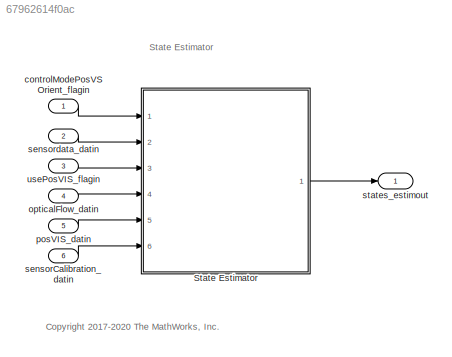
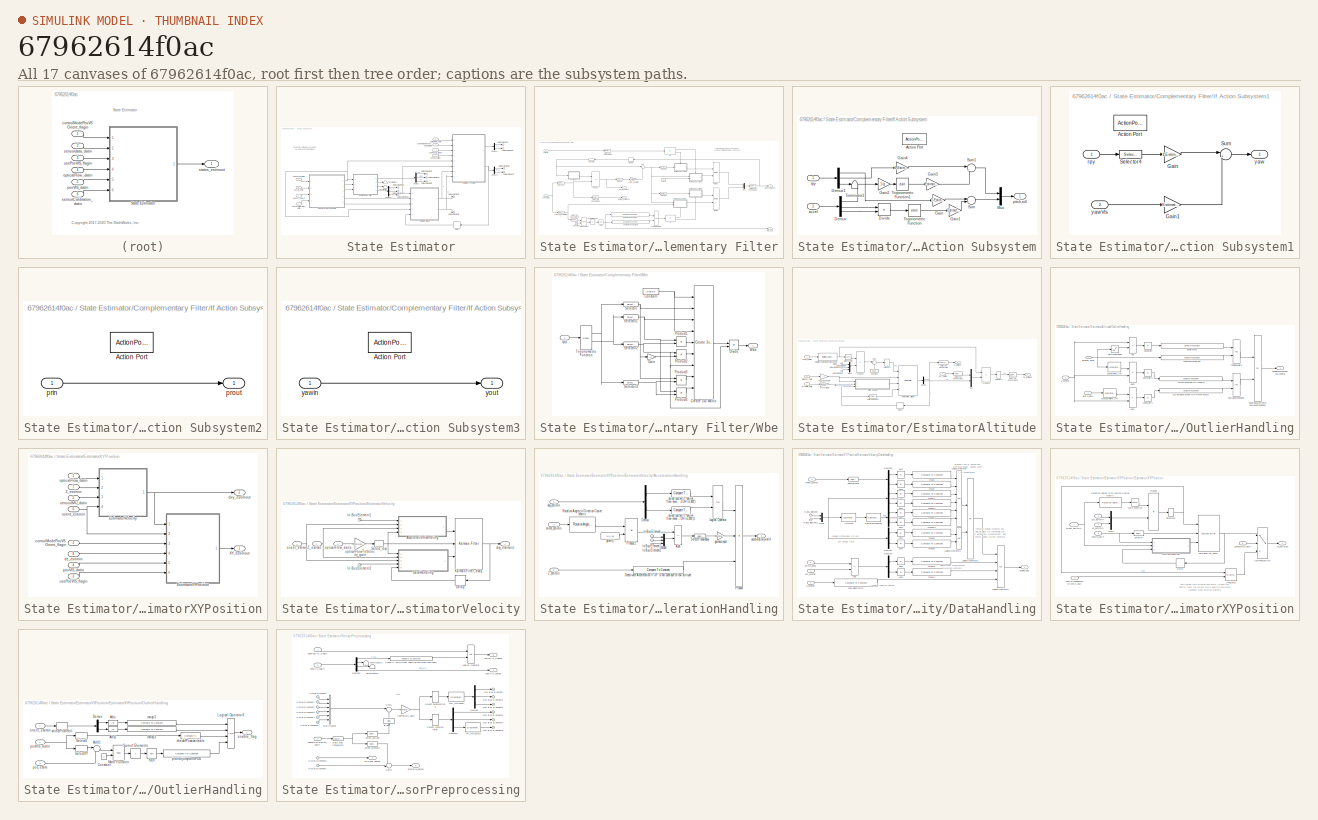
[diagram: thumbnail index - all 17 canvases of the model, root first then tree order]
MODEL slx_67962614f0ac
KIND model
CONFIG AbsTol = auto
CONFIG EnableMultiTasking = on
CONFIG FixedStep = Ts
CONFIG MaxStep = auto
CONFIG MinStep = auto
CONFIG RelTol = 1e-3
CONFIG SampleTimeConstraint = Unconstrained
CONFIG SolverName = ode3
CONFIG StartTime = 0
CONFIG StopTime = TFinal
BLOCK [SubSystem] State Estimator
  Ports = [6, 1]
  RequestExecContextInheritance = off
BLOCK [SubSystem] State Estimator/Complementary Filter
  Ports = [3, 4]
  RequestExecContextInheritance = off
BLOCK [Reference] State Estimator/Complementary Filter/Compare To Constant  REF=simulink/Logic and Bit
Operations/Compare
To Constant
  Ports = [1, 1]
  SourceBlock = simulink/Logic and Bit\nOperations/Compare\nTo Constant
  SourceProductBaseCode = SL
  SourceType = Compare To Constant
BLOCK [Reference] State Estimator/Complementary Filter/Compare To Constant1  REF=simulink/Logic and Bit
Operations/Compare
To Constant
  Ports = [1, 1]
  SourceBlock = simulink/Logic and Bit\nOperations/Compare\nTo Constant
  SourceProductBaseCode = SL
  SourceType = Compare To Constant
BLOCK [Constant] State Estimator/Complementary Filter/Constant
  OutDataTypeStr = single
  Value = 2
BLOCK [DataTypeConversion] State Estimator/Complementary Filter/Data Type Conversion
  OutDataTypeStr = single
  RndMeth = Floor
  SaturateOnIntegerOverflow = off
BLOCK [DataTypeConversion] State Estimator/Complementary Filter/Data Type Conversion1
  OutDataTypeStr = single
  RndMeth = Floor
  SaturateOnIntegerOverflow = off
BLOCK [DataTypeConversion] State Estimator/Complementary Filter/Data Type Conversion2
  OutDataTypeStr = single
  RndMeth = Floor
  SaturateOnIntegerOverflow = off
BLOCK [DataTypeConversion] State Estimator/Complementary Filter/Data Type Conversion3
  OutDataTypeStr = single
  RndMeth = Floor
  SaturateOnIntegerOverflow = off
BLOCK [If] State Estimator/Complementary Filter/If
  Ports = [1, 2]
BLOCK [SubSystem] State Estimator/Complementary Filter/If Action Subsystem
  NameLocation = top
  Ports = [2, 1, 0, 0, 0, 0, 0, 1]
  RequestExecContextInheritance = off
  TreatAsAtomicUnit = on
BLOCK [ActionPort] State Estimator/Complementary Filter/If Action Subsystem/Action Port
  ActionPortLabel = if(u1 > 0)
BLOCK [Demux] State Estimator/Complementary Filter/If Action Subsystem/Demux
  Outputs = 3
  Ports = [1, 3]
BLOCK [Demux] State Estimator/Complementary Filter/If Action Subsystem/Demux1
  Outputs = 3
  Ports = [1, 3]
BLOCK [Product] State Estimator/Complementary Filter/If Action Subsystem/Divide
  Inputs = */
  Ports = [2, 1]
BLOCK [Gain] State Estimator/Complementary Filter/If Action Subsystem/Gain
  Gain = 1-Estimator.gyroAngleUpdateAccWeight
BLOCK [Gain] State Estimator/Complementary Filter/If Action Subsystem/Gain1
  Gain = Estimator.gyroAngleUpdateAccWeight
BLOCK [Gain] State Estimator/Complementary Filter/If Action Subsystem/Gain2
  Gain = 1/g
BLOCK [Gain] State Estimator/Complementary Filter/If Action Subsystem/Gain3
  Gain = Estimator.gyroAngleUpdateAccWeight
BLOCK [Gain] State Estimator/Complementary Filter/If Action Subsystem/Gain4
  Gain = 1-Estimator.gyroAngleUpdateAccWeight
BLOCK [Mux] State Estimator/Complementary Filter/If Action Subsystem/Mux
  DisplayOption = bar
  Inputs = 2
  Ports = [2, 1]
BLOCK [Sum] State Estimator/Complementary Filter/If Action Subsystem/Sum
  Inputs = |++
  Ports = [2, 1]
BLOCK [Sum] State Estimator/Complementary Filter/If Action Subsystem/Sum1
  Inputs = |++
  Ports = [2, 1]
BLOCK [Terminator] State Estimator/Complementary Filter/If Action Subsystem/Terminator1
BLOCK [Trigonometry] State Estimator/Complementary Filter/If Action Subsystem/Trigonometric Function
  Operator = atan
  Ports = [1, 1]
BLOCK [Trigonometry] State Estimator/Complementary Filter/If Action Subsystem/Trigonometric Function1
  Operator = asin
  Ports = [1, 1]
BLOCK [Inport] State Estimator/Complementary Filter/If Action Subsystem/accel
  Port = 2
BLOCK [Outport] State Estimator/Complementary Filter/If Action Subsystem/pitch,roll
  VectorParamsAs1DForOutWhenUnconnected = off
BLOCK [Inport] State Estimator/Complementary Filter/If Action Subsystem/rpy
BLOCK [SubSystem] State Estimator/Complementary Filter/If Action Subsystem1
  Ports = [2, 1, 0, 0, 0, 0, 0, 1]
  RequestExecContextInheritance = off
  TreatAsAtomicUnit = on
BLOCK [ActionPort] State Estimator/Complementary Filter/If Action Subsystem1/Action Port
  ActionPortLabel = if(u1 > 0)
BLOCK [Gain] State Estimator/Complementary Filter/If Action Subsystem1/Gain
  Gain = 1-Estimator.gyroAngleUpdateVisWeight
BLOCK [Gain] State Estimator/Complementary Filter/If Action Subsystem1/Gain1
  Gain = Estimator.gyroAngleUpdateVisWeight
BLOCK [Selector] State Estimator/Complementary Filter/If Action Subsystem1/Selector4
  IndexOptions = Index vector (dialog)
  Indices = [3]
  InputPortWidth = 3
  OutputSizes = 1
  Ports = [1, 1]
BLOCK [Sum] State Estimator/Complementary Filter/If Action Subsystem1/Sum
  Inputs = |++
  Ports = [2, 1]
BLOCK [Inport] State Estimator/Complementary Filter/If Action Subsystem1/rpy
BLOCK [Outport] State Estimator/Complementary Filter/If Action Subsystem1/yaw
  VectorParamsAs1DForOutWhenUnconnected = off
BLOCK [Inport] State Estimator/Complementary Filter/If Action Subsystem1/yawVis
  Port = 2
BLOCK [SubSystem] State Estimator/Complementary Filter/If Action Subsystem2
  NameLocation = top
  Ports = [1, 1, 0, 0, 0, 0, 0, 1]
  RequestExecContextInheritance = off
  TreatAsAtomicUnit = on
BLOCK [ActionPort] State Estimator/Complementary Filter/If Action Subsystem2/Action Port
  ActionPortLabel = else
BLOCK [Inport] State Estimator/Complementary Filter/If Action Subsystem2/prin
BLOCK [Outport] State Estimator/Complementary Filter/If Action Subsystem2/prout
  VectorParamsAs1DForOutWhenUnconnected = off
BLOCK [SubSystem] State Estimator/Complementary Filter/If Action Subsystem3
  Ports = [1, 1, 0, 0, 0, 0, 0, 1]
  RequestExecContextInheritance = off
  TreatAsAtomicUnit = on
BLOCK [ActionPort] State Estimator/Complementary Filter/If Action Subsystem3/Action Port
  ActionPortLabel = else
BLOCK [Inport] State Estimator/Complementary Filter/If Action Subsystem3/yawin
BLOCK [Outport] State Estimator/Complementary Filter/If Action Subsystem3/yout
  VectorParamsAs1DForOutWhenUnconnected = off
BLOCK [If] State Estimator/Complementary Filter/If1
  Ports = [1, 2]
BLOCK [Logic] State Estimator/Complementary Filter/Logical Operator
  AllPortsSameDT = off
  OutDataTypeStr = fixdt(1,16)
  Ports = [2, 1]
BLOCK [Math] State Estimator/Complementary Filter/Math Function
  Operator = pow
  Ports = [2, 1]
  SignedPower = on
BLOCK [Memory] State Estimator/Complementary Filter/Memory
  InheritSampleTime = on
  InitialCondition = single(Estimator.complementaryFilterInit)
BLOCK [Merge] State Estimator/Complementary Filter/Merge
  Ports = [2, 1]
BLOCK [Merge] State Estimator/Complementary Filter/Merge1
  Ports = [2, 1]
BLOCK [Mux] State Estimator/Complementary Filter/Mux
  DisplayOption = bar
  Inputs = 2
  Ports = [2, 1]
BLOCK [Product] State Estimator/Complementary Filter/Product
  Multiplication = Matrix(*)
  Ports = [2, 1]
BLOCK [Selector] State Estimator/Complementary Filter/Selector
  IndexOptions = Index vector (dialog)
  Indices = [3 2 1]
  InputPortWidth = 3
  OutputSizes = 1
  Ports = [1, 1]
BLOCK [Selector] State Estimator/Complementary Filter/Selector3
  IndexOptions = Index vector (dialog)
  Indices = [2 1]
  InputPortWidth = 3
  OutputSizes = 1
  Ports = [1, 1]
BLOCK [Selector] State Estimator/Complementary Filter/Selector4
  IndexOptions = Index vector (dialog)
  Indices = [3]
  InputPortWidth = 3
  OutputSizes = 1
  Ports = [1, 1]
BLOCK [Selector] State Estimator/Complementary Filter/Selector5
  IndexOptions = Index vector (dialog)
  Indices = [3 2 1]
  InputPortWidth = 3
  OutputSizes = 1
  Ports = [1, 1]
BLOCK [Sqrt] State Estimator/Complementary Filter/Sqrt
BLOCK [Sum] State Estimator/Complementary Filter/Sum
  Inputs = |++
  Ports = [2, 1]
BLOCK [Sum] State Estimator/Complementary Filter/Sum of Elements
  IconShape = rectangular
  Inputs = +
  Ports = [1, 1]
BLOCK [SubSystem] State Estimator/Complementary Filter/Wbe
  Ports = [1, 1]
  RequestExecContextInheritance = off
BLOCK [Constant] State Estimator/Complementary Filter/Wbe/Constant
  Value = single(0)
BLOCK [Reference] State Estimator/Complementary Filter/Wbe/Create 3x3 Matrix  REF=sharedutil/Create 3x3 Matrix
  Ports = [9, 1]
  SourceBlock = sharedutil/Create 3x3 Matrix
  SourceProductBaseCode = AE,PW,DR,MT,UV,VE
  SourceType = Create 3x3 Matrix
BLOCK [Product] State Estimator/Complementary Filter/Wbe/Divide
  Inputs = */
  Ports = [2, 1]
BLOCK [Gain] State Estimator/Complementary Filter/Wbe/Gain
  Gain = -1
BLOCK [Product] State Estimator/Complementary Filter/Wbe/Product1
  Ports = [2, 1]
BLOCK [Product] State Estimator/Complementary Filter/Wbe/Product2
  Ports = [2, 1]
BLOCK [Product] State Estimator/Complementary Filter/Wbe/Product3
  Ports = [2, 1]
BLOCK [Product] State Estimator/Complementary Filter/Wbe/Product4
  Ports = [2, 1]
BLOCK [Selector] State Estimator/Complementary Filter/Wbe/Selector
  IndexOptions = Index vector (dialog)
  Indices = [1]
  InputPortWidth = 3
  OutputSizes = 1
  Ports = [1, 1]
BLOCK [Selector] State Estimator/Complementary Filter/Wbe/Selector1
  IndexOptions = Index vector (dialog)
  Indices = [1]
  InputPortWidth = 3
  OutputSizes = 1
  Ports = [1, 1]
BLOCK [Selector] State Estimator/Complementary Filter/Wbe/Selector2
  IndexOptions = Index vector (dialog)
  Indices = [2]
  InputPortWidth = 3
  OutputSizes = 1
  Ports = [1, 1]
BLOCK [Selector] State Estimator/Complementary Filter/Wbe/Selector3
  IndexOptions = Index vector (dialog)
  Indices = [2]
  InputPortWidth = 3
  OutputSizes = 1
  Ports = [1, 1]
BLOCK [Trigonometry] State Estimator/Complementary Filter/Wbe/Trigonometric Function
  Operator = sincos
  Ports = [1, 2]
BLOCK [Outport] State Estimator/Complementary Filter/Wbe/Wbe
  VectorParamsAs1DForOutWhenUnconnected = off
BLOCK [Inport] State Estimator/Complementary Filter/Wbe/rpy
  OutDataTypeStr = single
BLOCK [Outport] State Estimator/Complementary Filter/deuler_datout
  Port = 2
  VectorParamsAs1DForOutWhenUnconnected = off
BLOCK [Outport] State Estimator/Complementary Filter/dorient_estimaout
  Port = 4
  VectorParamsAs1DForOutWhenUnconnected = off
BLOCK [Gain] State Estimator/Complementary Filter/gyro_sensitivity
  Gain = Ts/Estimator.gyroscopeSensitivity
BLOCK [Outport] State Estimator/Complementary Filter/imu_abs
  OutDataTypeStr = single
  Port = 3
  VectorParamsAs1DForOutWhenUnconnected = off
BLOCK [Outport] State Estimator/Complementary Filter/orient_estimaout
  VectorParamsAs1DForOutWhenUnconnected = off
BLOCK [Selector] State Estimator/Complementary Filter/select_accelerations
  IndexOptions = Index vector (dialog)
  Indices = [1 2 3]
  InputPortWidth = 6
  OutputSizes = 1
  Ports = [1, 1]
BLOCK [Selector] State Estimator/Complementary Filter/select_pqr
  IndexOptions = Index vector (dialog)
  Indices = [4 5 6]
  InputPortWidth = 6
  OutputSizes = 1
  Ports = [1, 1]
BLOCK [Inport] State Estimator/Complementary Filter/sensorIMU
  OutDataTypeStr = single
BLOCK [Inport] State Estimator/Complementary Filter/validVis
  Port = 3
BLOCK [Inport] State Estimator/Complementary Filter/yawVIS
  Port = 2
BLOCK [Delay] State Estimator/Delay
  DelayLength = 1
  InitialCondition = 0
  InputPortMap = u0
  NameLocation = top
  Ports = [1, 1]
BLOCK [Demux] State Estimator/Demux
  Outputs = 3
  Ports = [1, 3]
BLOCK [Demux] State Estimator/Demux1
  Outputs = 3
  Ports = [1, 3]
BLOCK [Demux] State Estimator/Demux3
  Outputs = 2
  Ports = [1, 2]
BLOCK [Demux] State Estimator/Demux4
  Outputs = 2
  Ports = [1, 2]
BLOCK [SubSystem] State Estimator/EstimatorAltitude
  Ports = [5, 2]
  RequestExecContextInheritance = off
BLOCK [Constant] State Estimator/EstimatorAltitude/Constant
  NameLocation = right
  Value = [0 0 g]
BLOCK [DataTypeConversion] State Estimator/EstimatorAltitude/Data Type Conversion
  OutDataTypeStr = single
  RndMeth = Floor
BLOCK [DataTypeConversion] State Estimator/EstimatorAltitude/Data Type Conversion1
  OutDataTypeStr = double
  RndMeth = Floor
BLOCK [DataTypeConversion] State Estimator/EstimatorAltitude/Data Type Conversion2
  OutDataTypeStr = single
  RndMeth = Floor
BLOCK [Delay] State Estimator/EstimatorAltitude/Delay2
  DelayLength = 1
  InitialCondition = 0
  InputPortMap = u0
  NameLocation = top
  Ports = [1, 1]
BLOCK [Demux] State Estimator/EstimatorAltitude/Demux
  Outputs = 2
  Ports = [1, 2]
BLOCK [Inport] State Estimator/EstimatorAltitude/In Bus Element
  Port = 4
BLOCK [Inport] State Estimator/EstimatorAltitude/In Bus Element1
  Port = 4
BLOCK [Inport] State Estimator/EstimatorAltitude/In Bus Element2
  Port = 4
BLOCK [Reference] State Estimator/EstimatorAltitude/KalmanFilter_altitude  REF=ctrlSharedLib/Kalman Filter
  Ports = [4, 1]
  SourceBlock = ctrlSharedLib/Kalman Filter
  SourceProductBaseCode = CT,ID
  SourceType = ctrlKalmanFilter
BLOCK [Math] State Estimator/EstimatorAltitude/Math Function
  Operator = transpose
  Ports = [1, 1]
  SignedPower = on
BLOCK [Mux] State Estimator/EstimatorAltitude/Mux
  DisplayOption = bar
  Inputs = 2
  Ports = [2, 1]
BLOCK [Mux] State Estimator/EstimatorAltitude/Mux2
  DisplayOption = bar
  Inputs = 3
  Ports = [3, 1]
BLOCK [SubSystem] State Estimator/EstimatorAltitude/OutlierHandling
  Ports = [3, 1]
  RequestExecContextInheritance = off
BLOCK [Abs] State Estimator/EstimatorAltitude/OutlierHandling/Absestdiff
  SaturateOnIntegerOverflow = off
BLOCK [Abs] State Estimator/EstimatorAltitude/OutlierHandling/Absestdiff1
  SaturateOnIntegerOverflow = off
BLOCK [Abs] State Estimator/EstimatorAltitude/OutlierHandling/Absestdiff2
  SaturateOnIntegerOverflow = off
BLOCK [Sum] State Estimator/EstimatorAltitude/OutlierHandling/Add
  IconShape = rectangular
  Inputs = +-
  Ports = [2, 1]
BLOCK [Sum] State Estimator/EstimatorAltitude/OutlierHandling/Add1
  IconShape = rectangular
  Inputs = +-
  Ports = [2, 1]
BLOCK [Sum] State Estimator/EstimatorAltitude/OutlierHandling/Add2
  IconShape = rectangular
  Inputs = +-
  Ports = [2, 1]
BLOCK [Saturate] State Estimator/EstimatorAltitude/OutlierHandling/SaturationSonar
  LowerLimit = -inf
  UpperLimit = -Sensors.altSensorMin
BLOCK [Inport] State Estimator/EstimatorAltitude/OutlierHandling/Z_estimin
  Port = 3
BLOCK [Inport] State Estimator/EstimatorAltitude/OutlierHandling/altPrs_datin
  Port = 2
BLOCK [Inport] State Estimator/EstimatorAltitude/OutlierHandling/altSonar_datin
  NameLocation = top
BLOCK [Reference] State Estimator/EstimatorAltitude/OutlierHandling/checkForMinAltitude  REF=simulink/Logic and Bit
Operations/Compare
To Constant
  Ports = [1, 1]
  SourceBlock = simulink/Logic and Bit\nOperations/Compare\nTo Constant
  SourceProductBaseCode = SL
  SourceType = Compare To Constant
BLOCK [Reference] State Estimator/EstimatorAltitude/OutlierHandling/currentEstimateVeryOffFromPressure  REF=simulink/Logic and Bit
Operations/Compare
To Constant
  Ports = [1, 1]
  SourceBlock = simulink/Logic and Bit\nOperations/Compare\nTo Constant
  SourceProductBaseCode = SL
  SourceType = Compare To Constant
BLOCK [Reference] State Estimator/EstimatorAltitude/OutlierHandling/currentStateVeryOffsonarflt  REF=simulink/Logic and Bit
Operations/Compare
To Constant
  Ports = [1, 1]
  SourceBlock = simulink/Logic and Bit\nOperations/Compare\nTo Constant
  SourceProductBaseCode = SL
  SourceType = Compare To Constant
BLOCK [Outport] State Estimator/EstimatorAltitude/OutlierHandling/enableKFmeasupdate_flagout
  VectorParamsAs1DForOutWhenUnconnected = off
BLOCK [Logic] State Estimator/EstimatorAltitude/OutlierHandling/findingoutliers
  AllPortsSameDT = off
  OutDataTypeStr = boolean
  Ports = [2, 1]
BLOCK [Logic] State Estimator/EstimatorAltitude/OutlierHandling/newupdateneeded
  AllPortsSameDT = off
  OutDataTypeStr = boolean
  Ports = [2, 1]
BLOCK [Logic] State Estimator/EstimatorAltitude/OutlierHandling/nicemeasurementor newupdateneeded
  AllPortsSameDT = off
  Operator = OR
  OutDataTypeStr = boolean
  Ports = [2, 1]
BLOCK [Reference] State Estimator/EstimatorAltitude/OutlierHandling/outlierJump  REF=simulink/Logic and Bit
Operations/Compare
To Constant
  Ports = [1, 1]
  SourceBlock = simulink/Logic and Bit\nOperations/Compare\nTo Constant
  SourceProductBaseCode = SL
  SourceType = Compare To Constant
BLOCK [DiscreteFilter] State Estimator/EstimatorAltitude/OutlierHandling/pressureFilter_IIR
  Denominator = Estimator.alt.filterPrsDen
  InputPortMap = u0
  Numerator = Estimator.alt.filterPrsNum
  Ports = [1, 1]
BLOCK [DiscreteFilter] State Estimator/EstimatorAltitude/OutlierHandling/soonarFilter_IIR
  Denominator = Estimator.alt.filterSonarDen
  InputPortMap = u0
  Numerator = Estimator.alt.filterSonarNum
  Ports = [1, 1]
BLOCK [Product] State Estimator/EstimatorAltitude/Product
  Multiplication = Matrix(*)
  Ports = [2, 1]
BLOCK [Product] State Estimator/EstimatorAltitude/Product1
  Multiplication = Matrix(*)
  Ports = [2, 1]
BLOCK [Reference] State Estimator/EstimatorAltitude/Rotation Angles to Direction Cosine Matrix  REF=sharedtransform/Rotation Angles to
Direction Cosine Matrix
  AttributesFormatString = Rotation Order: %<rotationOrder>
  Ports = [1, 1]
  SourceBlock = sharedtransform/Rotation Angles to\nDirection Cosine Matrix
  SourceProductBaseCode = AE,PW,DR,MT,UV,VE
  SourceType = Ang2DCM
BLOCK [Selector] State Estimator/EstimatorAltitude/Selector4
  IndexOptions = Index vector (dialog)
  Indices = [3]
  InputPortWidth = 3
  OutputSizes = 1
  Ports = [1, 1]
BLOCK [Selector] State Estimator/EstimatorAltitude/Selector5
  IndexOptions = Index vector (dialog)
  Indices = [3]
  InputPortWidth = 3
  OutputSizes = 1
  Ports = [1, 1]
BLOCK [Sum] State Estimator/EstimatorAltitude/Sum
  Inputs = |++
  Ports = [2, 1]
BLOCK [Outport] State Estimator/EstimatorAltitude/Z_estimout
  VectorParamsAs1DForOutWhenUnconnected = off
BLOCK [Inport] State Estimator/EstimatorAltitude/altSonar_datin
  Port = 2
BLOCK [Inport] State Estimator/EstimatorAltitude/dxy_estimin
  Port = 5
BLOCK [Outport] State Estimator/EstimatorAltitude/dz_estimout
  Port = 2
  VectorParamsAs1DForOutWhenUnconnected = off
BLOCK [Gain] State Estimator/EstimatorAltitude/invertzaxisGain
  Gain = -1
  OutDataTypeStr = double
  ParamDataTypeStr = single
BLOCK [Inport] State Estimator/EstimatorAltitude/orient_estimin
BLOCK [Reference] State Estimator/EstimatorAltitude/outlierBelowFloor  REF=simulink/Logic and Bit
Operations/Compare
To Constant
  Ports = [1, 1]
  SourceBlock = simulink/Logic and Bit\nOperations/Compare\nTo Constant
  SourceProductBaseCode = SL
  SourceType = Compare To Constant
BLOCK [Inport] State Estimator/EstimatorAltitude/prsDelta_datin
  Port = 3
BLOCK [Gain] State Estimator/EstimatorAltitude/prsToAltGain
  Gain = 1/Sensors.altToPrsGain
BLOCK [SubSystem] State Estimator/EstimatorXYPosition
  Ports = [8, 2]
  RequestExecContextInheritance = off
BLOCK [SubSystem] State Estimator/EstimatorXYPosition/EstimatorVelocity
  Ports = [4, 1]
  RequestExecContextInheritance = off
BLOCK [SubSystem] State Estimator/EstimatorXYPosition/EstimatorVelocity/AccelerationHandling
  Ports = [4, 1]
  RequestExecContextInheritance = off
BLOCK [Sum] State Estimator/EstimatorXYPosition/EstimatorVelocity/AccelerationHandling/Add
  IconShape = rectangular
  Inputs = -+
  Ports = [2, 1]
BLOCK [Reference] State Estimator/EstimatorXYPosition/EstimatorVelocity/AccelerationHandling/Deactivate Acceleration If OF is not used due to low altitude  REF=simulink/Logic and Bit
Operations/Compare
To Constant
  Ports = [1, 1]
  SourceBlock = simulink/Logic and Bit\nOperations/Compare\nTo Constant
  SourceProductBaseCode = SL
  SourceType = Compare To Constant
BLOCK [Demux] State Estimator/EstimatorXYPosition/EstimatorVelocity/AccelerationHandling/Demux
  Outputs = 2
  Ports = [1, 2]
BLOCK [Inport] State Estimator/EstimatorXYPosition/EstimatorVelocity/AccelerationHandling/In Bus Element
BLOCK [Inport] State Estimator/EstimatorXYPosition/EstimatorVelocity/AccelerationHandling/In Bus Element1
BLOCK [Inport] State Estimator/EstimatorXYPosition/EstimatorVelocity/AccelerationHandling/In Bus Element2
BLOCK [Logic] State Estimator/EstimatorXYPosition/EstimatorVelocity/AccelerationHandling/Logical Operator
  AllPortsSameDT = off
  Operator = OR
  OutDataTypeStr = boolean
  Ports = [2, 1]
BLOCK [Mux] State Estimator/EstimatorXYPosition/EstimatorVelocity/AccelerationHandling/Mux6
  DisplayOption = bar
  Inputs = 3
  Ports = [3, 1]
BLOCK [Product] State Estimator/EstimatorXYPosition/EstimatorVelocity/AccelerationHandling/Product
  Inputs = 3
  Ports = [3, 1]
BLOCK [Product] State Estimator/EstimatorXYPosition/EstimatorVelocity/AccelerationHandling/Product1
  Multiplication = Matrix(*)
  Ports = [2, 1]
BLOCK [Reference] State Estimator/EstimatorXYPosition/EstimatorVelocity/AccelerationHandling/Rotation Angles to Direction Cosine Matrix  REF=sharedtransform/Rotation Angles to
Direction Cosine Matrix
  AttributesFormatString = Rotation Order: %<rotationOrder>
  Ports = [1, 1]
  SourceBlock = sharedtransform/Rotation Angles to\nDirection Cosine Matrix
  SourceProductBaseCode = AE,PW,DR,MT,UV,VE
  SourceType = Ang2DCM
BLOCK [Selector] State Estimator/EstimatorXYPosition/EstimatorVelocity/AccelerationHandling/SelectPlanarddxy
  IndexOptions = Index vector (dialog)
  Indices = [1 2]
  InputPortWidth = 3
  OutputSizes = 1
  Ports = [1, 1]
BLOCK [Inport] State Estimator/EstimatorXYPosition/EstimatorVelocity/AccelerationHandling/Z_estimin
  Port = 3
BLOCK [Outport] State Estimator/EstimatorXYPosition/EstimatorVelocity/AccelerationHandling/acceleration_world
  OutDataTypeStr = single
  VectorParamsAs1DForOutWhenUnconnected = off
BLOCK [Reference] State Estimator/EstimatorXYPosition/EstimatorVelocity/AccelerationHandling/do not use acc if optical flow never available (Note OF@60Hz but ZOH to 200!)  REF=simulink/Logic and Bit
Operations/Compare
To Constant
  Ports = [1, 1]
  SourceBlock = simulink/Logic and Bit\nOperations/Compare\nTo Constant
  SourceProductBaseCode = SL
  SourceType = Compare To Constant
BLOCK [Reference] State Estimator/EstimatorXYPosition/EstimatorVelocity/AccelerationHandling/do not use acc if optical flow never available (Note OF@60Hz but ZOH to 200!)1  REF=simulink/Logic and Bit
Operations/Compare
To Constant
  Ports = [1, 1]
  SourceBlock = simulink/Logic and Bit\nOperations/Compare\nTo Constant
  SourceProductBaseCode = SL
  SourceType = Compare To Constant
BLOCK [Inport] State Estimator/EstimatorXYPosition/EstimatorVelocity/AccelerationHandling/dxy_estimin
  Port = 4
BLOCK [Gain] State Estimator/EstimatorXYPosition/EstimatorVelocity/AccelerationHandling/gainaccinput
  Gain = Estimator.pos.accelerationInputGain
  OutDataTypeStr = single
BLOCK [Constant] State Estimator/EstimatorXYPosition/EstimatorVelocity/AccelerationHandling/gravity
  Value = [0 0 -g]
BLOCK [Inport] State Estimator/EstimatorXYPosition/EstimatorVelocity/AccelerationHandling/orient_estimin
  NameLocation = top
  Port = 2
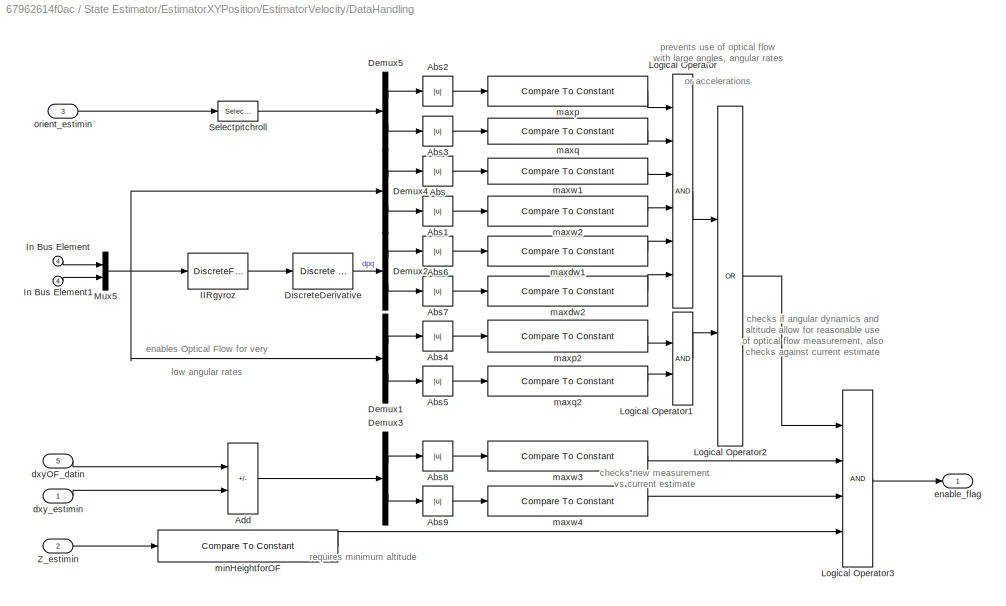
BLOCK [SubSystem] State Estimator/EstimatorXYPosition/EstimatorVelocity/DataHandling
  Ports = [5, 1]
  RequestExecContextInheritance = off
BLOCK [Abs] State Estimator/EstimatorXYPosition/EstimatorVelocity/DataHandling/Abs
  SaturateOnIntegerOverflow = off
BLOCK [Abs] State Estimator/EstimatorXYPosition/EstimatorVelocity/DataHandling/Abs1
  SaturateOnIntegerOverflow = off
BLOCK [Abs] State Estimator/EstimatorXYPosition/EstimatorVelocity/DataHandling/Abs2
  SaturateOnIntegerOverflow = off
BLOCK [Abs] State Estimator/EstimatorXYPosition/EstimatorVelocity/DataHandling/Abs3
  SaturateOnIntegerOverflow = off
BLOCK [Abs] State Estimator/EstimatorXYPosition/EstimatorVelocity/DataHandling/Abs4
  SaturateOnIntegerOverflow = off
BLOCK [Abs] State Estimator/EstimatorXYPosition/EstimatorVelocity/DataHandling/Abs5
  SaturateOnIntegerOverflow = off
BLOCK [Abs] State Estimator/EstimatorXYPosition/EstimatorVelocity/DataHandling/Abs6
  SaturateOnIntegerOverflow = off
BLOCK [Abs] State Estimator/EstimatorXYPosition/EstimatorVelocity/DataHandling/Abs7
  SaturateOnIntegerOverflow = off
BLOCK [Abs] State Estimator/EstimatorXYPosition/EstimatorVelocity/DataHandling/Abs8
  SaturateOnIntegerOverflow = off
BLOCK [Abs] State Estimator/EstimatorXYPosition/EstimatorVelocity/DataHandling/Abs9
  SaturateOnIntegerOverflow = off
BLOCK [Sum] State Estimator/EstimatorXYPosition/EstimatorVelocity/DataHandling/Add
  IconShape = rectangular
  Inputs = -+
  Ports = [2, 1]
BLOCK [Demux] State Estimator/EstimatorXYPosition/EstimatorVelocity/DataHandling/Demux1
  Outputs = 2
  Ports = [1, 2]
BLOCK [Demux] State Estimator/EstimatorXYPosition/EstimatorVelocity/DataHandling/Demux2
  Outputs = 2
  Ports = [1, 2]
BLOCK [Demux] State Estimator/EstimatorXYPosition/EstimatorVelocity/DataHandling/Demux3
  Outputs = 2
  Ports = [1, 2]
BLOCK [Demux] State Estimator/EstimatorXYPosition/EstimatorVelocity/DataHandling/Demux4
  Outputs = 2
  Ports = [1, 2]
BLOCK [Demux] State Estimator/EstimatorXYPosition/EstimatorVelocity/DataHandling/Demux5
  Outputs = 2
  Ports = [1, 2]
BLOCK [Reference] State Estimator/EstimatorXYPosition/EstimatorVelocity/DataHandling/DiscreteDerivative  REF=simulink/Discrete/Discrete Derivative
  Ports = [1, 1]
  SourceBlock = simulink/Discrete/Discrete Derivative
  SourceProductBaseCode = SL
  SourceType = Discrete Derivative
BLOCK [DiscreteFilter] State Estimator/EstimatorXYPosition/EstimatorVelocity/DataHandling/IIRgyroz
  Denominator = Estimator.IMU.filterGyroDen
  InputPortMap = u0
  Numerator = Estimator.IMU.filterGyroNum
  Ports = [1, 1]
BLOCK [Inport] State Estimator/EstimatorXYPosition/EstimatorVelocity/DataHandling/In Bus Element
  Port = 4
BLOCK [Inport] State Estimator/EstimatorXYPosition/EstimatorVelocity/DataHandling/In Bus Element1
  Port = 4
BLOCK [Logic] State Estimator/EstimatorXYPosition/EstimatorVelocity/DataHandling/Logical Operator
  AllPortsSameDT = off
  Inputs = 6
  OutDataTypeStr = boolean
  Ports = [6, 1]
BLOCK [Logic] State Estimator/EstimatorXYPosition/EstimatorVelocity/DataHandling/Logical Operator1
  AllPortsSameDT = off
  OutDataTypeStr = boolean
  Ports = [2, 1]
BLOCK [Logic] State Estimator/EstimatorXYPosition/EstimatorVelocity/DataHandling/Logical Operator2
  AllPortsSameDT = off
  Operator = OR
  OutDataTypeStr = boolean
  Ports = [2, 1]
BLOCK [Logic] State Estimator/EstimatorXYPosition/EstimatorVelocity/DataHandling/Logical Operator3
  AllPortsSameDT = off
  Inputs = 4
  OutDataTypeStr = boolean
  Ports = [4, 1]
BLOCK [Mux] State Estimator/EstimatorXYPosition/EstimatorVelocity/DataHandling/Mux5
  DisplayOption = bar
  Inputs = 2
  Ports = [2, 1]
BLOCK [Selector] State Estimator/EstimatorXYPosition/EstimatorVelocity/DataHandling/Selectpitchroll
  IndexOptions = Index vector (dialog)
  Indices = [2 3]
  InputPortWidth = 3
  OutputSizes = 1
  Ports = [1, 1]
BLOCK [Inport] State Estimator/EstimatorXYPosition/EstimatorVelocity/DataHandling/Z_estimin
  NameLocation = left
  Port = 2
BLOCK [Inport] State Estimator/EstimatorXYPosition/EstimatorVelocity/DataHandling/dxyOF_datin
  Port = 5
BLOCK [Inport] State Estimator/EstimatorXYPosition/EstimatorVelocity/DataHandling/dxy_estimin
BLOCK [Outport] State Estimator/EstimatorXYPosition/EstimatorVelocity/DataHandling/enable_flag
  VectorParamsAs1DForOutWhenUnconnected = off
BLOCK [Reference] State Estimator/EstimatorXYPosition/EstimatorVelocity/DataHandling/maxdw1  REF=simulink/Logic and Bit
Operations/Compare
To Constant
  Ports = [1, 1]
  SourceBlock = simulink/Logic and Bit\nOperations/Compare\nTo Constant
  SourceProductBaseCode = SL
  SourceType = Compare To Constant
BLOCK [Reference] State Estimator/EstimatorXYPosition/EstimatorVelocity/DataHandling/maxdw2  REF=simulink/Logic and Bit
Operations/Compare
To Constant
  Ports = [1, 1]
  SourceBlock = simulink/Logic and Bit\nOperations/Compare\nTo Constant
  SourceProductBaseCode = SL
  SourceType = Compare To Constant
BLOCK [Reference] State Estimator/EstimatorXYPosition/EstimatorVelocity/DataHandling/maxp  REF=simulink/Logic and Bit
Operations/Compare
To Constant
  Ports = [1, 1]
  SourceBlock = simulink/Logic and Bit\nOperations/Compare\nTo Constant
  SourceProductBaseCode = SL
  SourceType = Compare To Constant
BLOCK [Reference] State Estimator/EstimatorXYPosition/EstimatorVelocity/DataHandling/maxp2  REF=simulink/Logic and Bit
Operations/Compare
To Constant
  Ports = [1, 1]
  SourceBlock = simulink/Logic and Bit\nOperations/Compare\nTo Constant
  SourceProductBaseCode = SL
  SourceType = Compare To Constant
BLOCK [Reference] State Estimator/EstimatorXYPosition/EstimatorVelocity/DataHandling/maxq  REF=simulink/Logic and Bit
Operations/Compare
To Constant
  Ports = [1, 1]
  SourceBlock = simulink/Logic and Bit\nOperations/Compare\nTo Constant
  SourceProductBaseCode = SL
  SourceType = Compare To Constant
BLOCK [Reference] State Estimator/EstimatorXYPosition/EstimatorVelocity/DataHandling/maxq2  REF=simulink/Logic and Bit
Operations/Compare
To Constant
  Ports = [1, 1]
  SourceBlock = simulink/Logic and Bit\nOperations/Compare\nTo Constant
  SourceProductBaseCode = SL
  SourceType = Compare To Constant
BLOCK [Reference] State Estimator/EstimatorXYPosition/EstimatorVelocity/DataHandling/maxw1  REF=simulink/Logic and Bit
Operations/Compare
To Constant
  Ports = [1, 1]
  SourceBlock = simulink/Logic and Bit\nOperations/Compare\nTo Constant
  SourceProductBaseCode = SL
  SourceType = Compare To Constant
BLOCK [Reference] State Estimator/EstimatorXYPosition/EstimatorVelocity/DataHandling/maxw2  REF=simulink/Logic and Bit
Operations/Compare
To Constant
  Ports = [1, 1]
  SourceBlock = simulink/Logic and Bit\nOperations/Compare\nTo Constant
  SourceProductBaseCode = SL
  SourceType = Compare To Constant
BLOCK [Reference] State Estimator/EstimatorXYPosition/EstimatorVelocity/DataHandling/maxw3  REF=simulink/Logic and Bit
Operations/Compare
To Constant
  Ports = [1, 1]
  SourceBlock = simulink/Logic and Bit\nOperations/Compare\nTo Constant
  SourceProductBaseCode = SL
  SourceType = Compare To Constant
BLOCK [Reference] State Estimator/EstimatorXYPosition/EstimatorVelocity/DataHandling/maxw4  REF=simulink/Logic and Bit
Operations/Compare
To Constant
  Ports = [1, 1]
  SourceBlock = simulink/Logic and Bit\nOperations/Compare\nTo Constant
  SourceProductBaseCode = SL
  SourceType = Compare To Constant
BLOCK [Reference] State Estimator/EstimatorXYPosition/EstimatorVelocity/DataHandling/minHeightforOF  REF=simulink/Logic and Bit
Operations/Compare
To Constant
  Ports = [1, 1]
  SourceBlock = simulink/Logic and Bit\nOperations/Compare\nTo Constant
  SourceProductBaseCode = SL
  SourceType = Compare To Constant
BLOCK [Inport] State Estimator/EstimatorXYPosition/EstimatorVelocity/DataHandling/orient_estimin
  Port = 3
BLOCK [Delay] State Estimator/EstimatorXYPosition/EstimatorVelocity/Delay
  DelayLength = 1
  InitialCondition = 0
  InputPortMap = u0
  Ports = [1, 1]
BLOCK [Inport] State Estimator/EstimatorXYPosition/EstimatorVelocity/In Bus Element1
  Port = 3
BLOCK [Inport] State Estimator/EstimatorXYPosition/EstimatorVelocity/In Bus Element2
  Port = 3
BLOCK [Reference] State Estimator/EstimatorXYPosition/EstimatorVelocity/KalmanFilter_dxdy  REF=ctrlSharedLib/Kalman Filter
  Ports = [3, 1]
  SourceBlock = ctrlSharedLib/Kalman Filter
  SourceProductBaseCode = CT,ID
  SourceType = ctrlKalmanFilter
BLOCK [Selector] State Estimator/EstimatorXYPosition/EstimatorVelocity/Select_dxy
  IndexOptions = Index vector (dialog)
  Indices = [1 2]
  InputPortWidth = 3
  OutputSizes = 1
  Ports = [1, 1]
BLOCK [Inport] State Estimator/EstimatorXYPosition/EstimatorVelocity/Z_estimin
  Port = 2
  SampleTime = Ts
BLOCK [Outport] State Estimator/EstimatorXYPosition/EstimatorVelocity/dxy_estimout
  VectorParamsAs1DForOutWhenUnconnected = off
BLOCK [Gain] State Estimator/EstimatorXYPosition/EstimatorVelocity/opticalFlowToVelocity_gain
  Gain = Estimator.pos.opticalFlowToVelocityGain
BLOCK [Inport] State Estimator/EstimatorXYPosition/EstimatorVelocity/opticalFlow_datin
BLOCK [Inport] State Estimator/EstimatorXYPosition/EstimatorVelocity/orient_estimin
  Port = 4
BLOCK [SubSystem] State Estimator/EstimatorXYPosition/EstimatorXYPosition
  Ports = [6, 1]
  RequestExecContextInheritance = off
BLOCK [Delay] State Estimator/EstimatorXYPosition/EstimatorXYPosition/Delay
  DelayLength = 1
  InitialCondition = 0
  InputPortMap = u0
  Ports = [1, 1]
BLOCK [DiscreteIntegrator] State Estimator/EstimatorXYPosition/EstimatorXYPosition/Integrator
  ExternalReset = rising
  ICPrevOutput = DiscIntNeverNeededParam
  ICPrevScaledInput = DiscIntNeverNeededParam
  InitialConditionSetting = Auto
  Ports = [2, 1]
  SampleTime = Ts
BLOCK [Reference] State Estimator/EstimatorXYPosition/EstimatorXYPosition/KalmanFilter_posxy  REF=ctrlSharedLib/Kalman Filter
  Ports = [3, 1]
  SourceBlock = ctrlSharedLib/Kalman Filter
  SourceProductBaseCode = CT,ID
  SourceType = ctrlKalmanFilter
BLOCK [Math] State Estimator/EstimatorXYPosition/EstimatorXYPosition/Math Function
  Operator = transpose
  Ports = [1, 1]
  SignedPower = on
BLOCK [Mux] State Estimator/EstimatorXYPosition/EstimatorXYPosition/Mux2
  DisplayOption = bar
  Inputs = 2
  Ports = [2, 1]
BLOCK [SubSystem] State Estimator/EstimatorXYPosition/EstimatorXYPosition/OutlierHandling
  Ports = [3, 1]
  RequestExecContextInheritance = off
BLOCK [Abs] State Estimator/EstimatorXYPosition/EstimatorXYPosition/OutlierHandling/Abs
  SaturateOnIntegerOverflow = off
BLOCK [Abs] State Estimator/EstimatorXYPosition/EstimatorXYPosition/OutlierHandling/Abs1
  SaturateOnIntegerOverflow = off
BLOCK [Sum] State Estimator/EstimatorXYPosition/EstimatorXYPosition/OutlierHandling/Add1
  AccumDataTypeStr = single
  Inputs = |+-
  Ports = [2, 1]
BLOCK [Constant] State Estimator/EstimatorXYPosition/EstimatorXYPosition/OutlierHandling/Constant
  OutDataTypeStr = single
  Value = 2
BLOCK [Demux] State Estimator/EstimatorXYPosition/EstimatorXYPosition/OutlierHandling/Demux
  Outputs = 2
  Ports = [1, 2]
BLOCK [Logic] State Estimator/EstimatorXYPosition/EstimatorXYPosition/OutlierHandling/Logical Operator3
  AllPortsSameDT = off
  Inputs = 4
  OutDataTypeStr = boolean
  Ports = [4, 1]
BLOCK [Math] State Estimator/EstimatorXYPosition/EstimatorXYPosition/OutlierHandling/Math Function
  Operator = pow
  Ports = [2, 1]
  SignedPower = on
BLOCK [Selector] State Estimator/EstimatorXYPosition/EstimatorXYPosition/OutlierHandling/SelectX
  IndexOptions = Index vector (dialog)
  Indices = [1]
  InputPortWidth = 4
  OutputSizes = 1
  Ports = [1, 1]
BLOCK [Selector] State Estimator/EstimatorXYPosition/EstimatorXYPosition/OutlierHandling/SelectXY
  IndexOptions = Index vector (dialog)
  Indices = [1 2]
  InputPortWidth = 4
  OutputSizes = 1
  Ports = [1, 1]
BLOCK [Sqrt] State Estimator/EstimatorXYPosition/EstimatorXYPosition/OutlierHandling/Sqrt
BLOCK [Sum] State Estimator/EstimatorXYPosition/EstimatorXYPosition/OutlierHandling/Sum of Elements
  IconShape = rectangular
  Inputs = +
  Ports = [1, 1]
BLOCK [Reference] State Estimator/EstimatorXYPosition/EstimatorXYPosition/OutlierHandling/checkifPosavailable  REF=simulink/Logic and Bit
Operations/Compare
To Constant
  Ports = [1, 1]
  SourceBlock = simulink/Logic and Bit\nOperations/Compare\nTo Constant
  SourceProductBaseCode = SL
  SourceType = Compare To Constant
BLOCK [Outport] State Estimator/EstimatorXYPosition/EstimatorXYPosition/OutlierHandling/enable_flag
  VectorParamsAs1DForOutWhenUnconnected = off
BLOCK [Reference] State Estimator/EstimatorXYPosition/EstimatorXYPosition/OutlierHandling/maxp3  REF=simulink/Logic and Bit
Operations/Compare
To Constant
  Ports = [1, 1]
  SourceBlock = simulink/Logic and Bit\nOperations/Compare\nTo Constant
  SourceProductBaseCode = SL
  SourceType = Compare To Constant
BLOCK [Reference] State Estimator/EstimatorXYPosition/EstimatorXYPosition/OutlierHandling/maxq3  REF=simulink/Logic and Bit
Operations/Compare
To Constant
  Ports = [1, 1]
  SourceBlock = simulink/Logic and Bit\nOperations/Compare\nTo Constant
  SourceProductBaseCode = SL
  SourceType = Compare To Constant
BLOCK [Inport] State Estimator/EstimatorXYPosition/EstimatorXYPosition/OutlierHandling/orient_estimin
  Port = 2
BLOCK [Reference] State Estimator/EstimatorXYPosition/EstimatorXYPosition/OutlierHandling/planarjumpsVISPOS  REF=simulink/Logic and Bit
Operations/Compare
To Constant
  Ports = [1, 1]
  SourceBlock = simulink/Logic and Bit\nOperations/Compare\nTo Constant
  SourceProductBaseCode = SL
  SourceType = Compare To Constant
BLOCK [Inport] State Estimator/EstimatorXYPosition/EstimatorXYPosition/OutlierHandling/posVIS_datin
BLOCK [Inport] State Estimator/EstimatorXYPosition/EstimatorXYPosition/OutlierHandling/pos_estim
  Port = 3
BLOCK [Selector] State Estimator/EstimatorXYPosition/EstimatorXYPosition/OutlierHandling/selectPitchRoll
  IndexOptions = Index vector (dialog)
  Indices = [2 3]
  InputPortWidth = 3
  OutputSizes = 1
  Ports = [1, 1]
BLOCK [Product] State Estimator/EstimatorXYPosition/EstimatorXYPosition/Product
  Multiplication = Matrix(*)
  Ports = [2, 1]
BLOCK [Reference] State Estimator/EstimatorXYPosition/EstimatorXYPosition/Rotation Angles to Direction Cosine Matrix  REF=sharedtransform/Rotation Angles to
Direction Cosine Matrix
  AttributesFormatString = Rotation Order: %<rotationOrder>
  Ports = [1, 1]
  SourceBlock = sharedtransform/Rotation Angles to\nDirection Cosine Matrix
  SourceProductBaseCode = AE,PW,DR,MT,UV,VE
  SourceType = Ang2DCM
BLOCK [Selector] State Estimator/EstimatorXYPosition/EstimatorXYPosition/SelectXY
  IndexOptions = Index vector (dialog)
  Indices = [1 2]
  InputPortWidth = 4
  OutputSizes = 1
  Ports = [1, 1]
BLOCK [Selector] State Estimator/EstimatorXYPosition/EstimatorXYPosition/SelectdXY
  IndexOptions = Index vector (dialog)
  Indices = [1 2]
  InputPortWidth = 3
  OutputSizes = 1
  Ports = [1, 1]
BLOCK [Switch] State Estimator/EstimatorXYPosition/EstimatorXYPosition/UseIPPosSwitch
  Criteria = u2 > Threshold
  InputSameDT = off
  SaturateOnIntegerOverflow = off
BLOCK [Outport] State Estimator/EstimatorXYPosition/EstimatorXYPosition/XY_estimout
  VectorParamsAs1DForOutWhenUnconnected = off
BLOCK [Inport] State Estimator/EstimatorXYPosition/EstimatorXYPosition/controlModePosVSOrient_flagin
  Port = 3
BLOCK [Inport] State Estimator/EstimatorXYPosition/EstimatorXYPosition/dxy_estimin
BLOCK [Inport] State Estimator/EstimatorXYPosition/EstimatorXYPosition/dz_estimin
  Port = 4
BLOCK [Inport] State Estimator/EstimatorXYPosition/EstimatorXYPosition/orient_estimin
  NameLocation = top
  Port = 2
  SampleTime = Ts
BLOCK [Inport] State Estimator/EstimatorXYPosition/EstimatorXYPosition/posVIS_datin
  Port = 5
BLOCK [Inport] State Estimator/EstimatorXYPosition/EstimatorXYPosition/usePosVIS_flagin
  Port = 6
BLOCK [Outport] State Estimator/EstimatorXYPosition/XY_estimout
  VectorParamsAs1DForOutWhenUnconnected = off
BLOCK [Inport] State Estimator/EstimatorXYPosition/Z_estimin
  Port = 7
BLOCK [Inport] State Estimator/EstimatorXYPosition/controlModePosVSOrient_flagin
  Port = 2
BLOCK [Outport] State Estimator/EstimatorXYPosition/dxy_estimout
  Port = 2
  VectorParamsAs1DForOutWhenUnconnected = off
BLOCK [Inport] State Estimator/EstimatorXYPosition/dz_estimin
  Port = 8
BLOCK [Inport] State Estimator/EstimatorXYPosition/opticalFlow_datin
BLOCK [Inport] State Estimator/EstimatorXYPosition/orient_estimin
  Port = 6
BLOCK [Inport] State Estimator/EstimatorXYPosition/posVIS_datin
  Port = 4
BLOCK [Inport] State Estimator/EstimatorXYPosition/sensorIMU_datin
  Port = 5
BLOCK [Inport] State Estimator/EstimatorXYPosition/usePosVIS_flagin
  Port = 3
BLOCK [Outport] State Estimator/Out Bus Element
  VectorParamsAs1DForOutWhenUnconnected = off
BLOCK [Outport] State Estimator/Out Bus Element1
  VectorParamsAs1DForOutWhenUnconnected = off
BLOCK [Outport] State Estimator/Out Bus Element10
  VectorParamsAs1DForOutWhenUnconnected = off
BLOCK [Outport] State Estimator/Out Bus Element11
  VectorParamsAs1DForOutWhenUnconnected = off
BLOCK [Outport] State Estimator/Out Bus Element2
  VectorParamsAs1DForOutWhenUnconnected = off
BLOCK [Outport] State Estimator/Out Bus Element3
  VectorParamsAs1DForOutWhenUnconnected = off
BLOCK [Outport] State Estimator/Out Bus Element4
  VectorParamsAs1DForOutWhenUnconnected = off
BLOCK [Outport] State Estimator/Out Bus Element5
  VectorParamsAs1DForOutWhenUnconnected = off
BLOCK [Outport] State Estimator/Out Bus Element6
  VectorParamsAs1DForOutWhenUnconnected = off
BLOCK [Outport] State Estimator/Out Bus Element7
  VectorParamsAs1DForOutWhenUnconnected = off
BLOCK [Outport] State Estimator/Out Bus Element8
  VectorParamsAs1DForOutWhenUnconnected = off
BLOCK [Outport] State Estimator/Out Bus Element9
  VectorParamsAs1DForOutWhenUnconnected = off
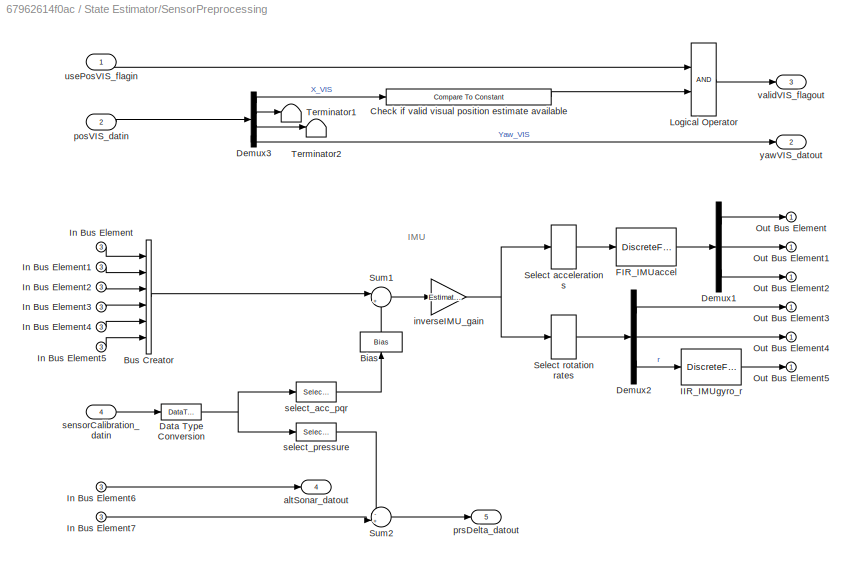
BLOCK [SubSystem] State Estimator/SensorPreprocessing
  Ports = [4, 5]
  RequestExecContextInheritance = off
BLOCK [Bias] State Estimator/SensorPreprocessing/Bias
  Bias = [0 0 g 0 0 0]
  NameLocation = right
  SaturateOnIntegerOverflow = off
BLOCK [BusCreator] State Estimator/SensorPreprocessing/Bus Creator
  DisplayOption = bar
  InheritFromInputs = on
  Inputs = 6
  Ports = [6, 1]
BLOCK [Reference] State Estimator/SensorPreprocessing/Check if valid visual position estimate available  REF=simulink/Logic and Bit
Operations/Compare
To Constant
  Ports = [1, 1]
  SourceBlock = simulink/Logic and Bit\nOperations/Compare\nTo Constant
  SourceProductBaseCode = SL
  SourceType = Compare To Constant
BLOCK [DataTypeConversion] State Estimator/SensorPreprocessing/Data Type Conversion
  RndMeth = Floor
  SaturateOnIntegerOverflow = off
BLOCK [Demux] State Estimator/SensorPreprocessing/Demux1
  Outputs = 3
  Ports = [1, 3]
BLOCK [Demux] State Estimator/SensorPreprocessing/Demux2
  Outputs = 3
  Ports = [1, 3]
BLOCK [Demux] State Estimator/SensorPreprocessing/Demux3
  Ports = [1, 4]
BLOCK [DiscreteFir] State Estimator/SensorPreprocessing/FIR_IMUaccel
  Coefficients = Estimator.IMU.filterAccel.Coefficients
  InputPortMap = u0
  OutputPortMap = o0
  Ports = [1, 1]
BLOCK [DiscreteFilter] State Estimator/SensorPreprocessing/IIR_IMUgyro_r
  Denominator = Estimator.IMU.filterGyroDen
  InputPortMap = u0
  Numerator = Estimator.IMU.filterGyroNum
  Ports = [1, 1]
BLOCK [Inport] State Estimator/SensorPreprocessing/In Bus Element
  Port = 3
BLOCK [Inport] State Estimator/SensorPreprocessing/In Bus Element1
  Port = 3
BLOCK [Inport] State Estimator/SensorPreprocessing/In Bus Element2
  Port = 3
BLOCK [Inport] State Estimator/SensorPreprocessing/In Bus Element3
  Port = 3
BLOCK [Inport] State Estimator/SensorPreprocessing/In Bus Element4
  Port = 3
BLOCK [Inport] State Estimator/SensorPreprocessing/In Bus Element5
  Port = 3
BLOCK [Inport] State Estimator/SensorPreprocessing/In Bus Element6
  Port = 3
BLOCK [Inport] State Estimator/SensorPreprocessing/In Bus Element7
  Port = 3
BLOCK [Logic] State Estimator/SensorPreprocessing/Logical Operator
  AllPortsSameDT = off
  OutDataTypeStr = boolean
  Ports = [2, 1]
BLOCK [Outport] State Estimator/SensorPreprocessing/Out Bus Element
BLOCK [Outport] State Estimator/SensorPreprocessing/Out Bus Element1
BLOCK [Outport] State Estimator/SensorPreprocessing/Out Bus Element2
BLOCK [Outport] State Estimator/SensorPreprocessing/Out Bus Element3
BLOCK [Outport] State Estimator/SensorPreprocessing/Out Bus Element4
BLOCK [Outport] State Estimator/SensorPreprocessing/Out Bus Element5
BLOCK [Selector] State Estimator/SensorPreprocessing/Select accelerations
  IndexOptions = Index vector (dialog)
  Indices = 1:3
  InputPortWidth = 6
  OutputSizes = 1
  Ports = [1, 1]
BLOCK [Selector] State Estimator/SensorPreprocessing/Select rotation rates
  IndexOptions = Index vector (dialog)
  Indices = 4:6
  InputPortWidth = 6
  OutputSizes = 1
  Ports = [1, 1]
BLOCK [Sum] State Estimator/SensorPreprocessing/Sum1
  Inputs = |+-
  Ports = [2, 1]
BLOCK [Sum] State Estimator/SensorPreprocessing/Sum2
  Inputs = -+|
  Ports = [2, 1]
BLOCK [Terminator] State Estimator/SensorPreprocessing/Terminator1
BLOCK [Terminator] State Estimator/SensorPreprocessing/Terminator2
BLOCK [Outport] State Estimator/SensorPreprocessing/altSonar_datout
  Port = 4
  VectorParamsAs1DForOutWhenUnconnected = off
BLOCK [Gain] State Estimator/SensorPreprocessing/inverseIMU_gain
  Gain = Estimator.inverseIMUGain
  OutDataTypeStr = single
  ParamDataTypeStr = single
BLOCK [Inport] State Estimator/SensorPreprocessing/posVIS_datin
  Port = 2
BLOCK [Outport] State Estimator/SensorPreprocessing/prsDelta_datout
  Port = 5
  VectorParamsAs1DForOutWhenUnconnected = off
BLOCK [Selector] State Estimator/SensorPreprocessing/select_acc_pqr
  IndexOptions = Index vector (dialog)
  Indices = 1:6
  InputPortWidth = 8
  OutputSizes = 1
  Ports = [1, 1]
BLOCK [Selector] State Estimator/SensorPreprocessing/select_pressure
  IndexOptions = Index vector (dialog)
  Indices = 7
  InputPortWidth = 8
  OutputSizes = 1
  Ports = [1, 1]
BLOCK [Inport] State Estimator/SensorPreprocessing/sensorCalibration_datin
  Port = 4
BLOCK [Inport] State Estimator/SensorPreprocessing/usePosVIS_flagin
BLOCK [Outport] State Estimator/SensorPreprocessing/validVIS_flagout
  Port = 3
  VectorParamsAs1DForOutWhenUnconnected = off
BLOCK [Outport] State Estimator/SensorPreprocessing/yawVIS_datout
  Port = 2
  VectorParamsAs1DForOutWhenUnconnected = off
BLOCK [Terminator] State Estimator/Terminator
BLOCK [Terminator] State Estimator/Terminator1
BLOCK [Inport] State Estimator/controlModePosVSOrient_flagin
  OutDataTypeStr = boolean
BLOCK [Inport] State Estimator/opticalFlow_datin
  Port = 4
BLOCK [Inport] State Estimator/posVIS_datin
  Port = 5
BLOCK [InportShadow] State Estimator/posVIS_datin1
  Port = 5
BLOCK [Inport] State Estimator/sensorCalibration_datin
  Port = 6
BLOCK [Inport] State Estimator/sensor_data_in
  Port = 2
BLOCK [Inport] State Estimator/usePosVIS_flagin
  Port = 3
BLOCK [InportShadow] State Estimator/usePosVIS_flagin1
  Port = 3
BLOCK [Inport] controlModePosVSOrient_flagin
  OutDataTypeStr = boolean
  SampleTime = Ts
BLOCK [Inport] opticalFlow_datin
  OutDataTypeStr = single
  Port = 4
  SampleTime = Ts
BLOCK [Inport] posVIS_datin
  OutDataTypeStr = single
  Port = 5
  SampleTime = Ts
BLOCK [Inport] sensorCalibration_datin
  OutDataTypeStr = single
  Port = 6
  SampleTime = Ts
BLOCK [Inport] sensordata_datin
  BusOutputAsStruct = on
  OutDataTypeStr = Bus: sensordata_t
  Port = 2
  SampleTime = Ts
BLOCK [Outport] states_estimout
  BusOutputAsStruct = on
  OutDataTypeStr = Bus: statesEstim_t
  VectorParamsAs1DForOutWhenUnconnected = off
BLOCK [Inport] usePosVIS_flagin
  OutDataTypeStr = single
  Port = 3
  SampleTime = Ts
ANNOTATION (root): State Estimator
ANNOTATION (root): <copyright redacted>
ANNOTATION State Estimator: Derived frrom the work by Sertac Karaman and Fabian Riether
ANNOTATION State Estimator/Complementary Filter: Derived from the work by Fabian Riether Inspired by http://www.pieter-jan.com/node/11
ANNOTATION State Estimator/EstimatorXYPosition/EstimatorVelocity/DataHandling: checks if angular dynamics and altitude allow for reasonable use of optical flow measurement, also checks against current estimate
ANNOTATION State Estimator/EstimatorXYPosition/EstimatorVelocity/DataHandling: checks new measurement vs current estimate
ANNOTATION State Estimator/EstimatorXYPosition/EstimatorVelocity/DataHandling: enables Optical Flow for very low angular rates
ANNOTATION State Estimator/EstimatorXYPosition/EstimatorVelocity/DataHandling: prevents use of optical flow with large angles, angular rates or accelerations
ANNOTATION State Estimator/EstimatorXYPosition/EstimatorVelocity/DataHandling: requires minimum altitude
ANNOTATION State Estimator/EstimatorXYPosition/EstimatorXYPosition: Switching from orientationControl to Position control reset the current world position estimate (happens when using no markers)
ANNOTATION State Estimator/SensorPreprocessing: IMU
LINE State Estimator/Complementary Filter/Compare To Constant1:1 -> State Estimator/Complementary Filter/Logical Operator:2
LINE State Estimator/Complementary Filter/Compare To Constant:1 -> State Estimator/Complementary Filter/Logical Operator:1
LINE State Estimator/Complementary Filter/Constant:1 -> State Estimator/Complementary Filter/Math Function:2
LINE State Estimator/Complementary Filter/Data Type Conversion1:1 -> State Estimator/Complementary Filter/dorient_estimaout:1
LINE State Estimator/Complementary Filter/Data Type Conversion2:1 -> State Estimator/Complementary Filter/Math Function:1
NET State Estimator/Complementary Filter/Data Type Conversion3:1 -> State Estimator/Complementary Filter/Memory:1, State Estimator/Complementary Filter/orient_estimaout:1
LINE State Estimator/Complementary Filter/Data Type Conversion:1 -> State Estimator/Complementary Filter/If1:1
LINE State Estimator/Complementary Filter/If Action Subsystem/Demux1:1 -> State Estimator/Complementary Filter/If Action Subsystem/Gain:1
LINE State Estimator/Complementary Filter/If Action Subsystem/Demux1:2 -> State Estimator/Complementary Filter/If Action Subsystem/Gain4:1
LINE State Estimator/Complementary Filter/If Action Subsystem/Demux1:3 -> State Estimator/Complementary Filter/If Action Subsystem/Terminator1:1
LINE State Estimator/Complementary Filter/If Action Subsystem/Demux:1 -> State Estimator/Complementary Filter/If Action Subsystem/Gain2:1
LINE State Estimator/Complementary Filter/If Action Subsystem/Demux:2 -> State Estimator/Complementary Filter/If Action Subsystem/Divide:1
LINE State Estimator/Complementary Filter/If Action Subsystem/Demux:3 -> State Estimator/Complementary Filter/If Action Subsystem/Divide:2
LINE State Estimator/Complementary Filter/If Action Subsystem/Divide:1 -> State Estimator/Complementary Filter/If Action Subsystem/Trigonometric Function:1
LINE State Estimator/Complementary Filter/If Action Subsystem/Gain1:1 -> State Estimator/Complementary Filter/If Action Subsystem/Sum:2
LINE State Estimator/Complementary Filter/If Action Subsystem/Gain2:1 -> State Estimator/Complementary Filter/If Action Subsystem/Trigonometric Function1:1
LINE State Estimator/Complementary Filter/If Action Subsystem/Gain3:1 -> State Estimator/Complementary Filter/If Action Subsystem/Sum1:2
LINE State Estimator/Complementary Filter/If Action Subsystem/Gain4:1 -> State Estimator/Complementary Filter/If Action Subsystem/Sum1:1
LINE State Estimator/Complementary Filter/If Action Subsystem/Gain:1 -> State Estimator/Complementary Filter/If Action Subsystem/Sum:1
LINE State Estimator/Complementary Filter/If Action Subsystem/Mux:1 -> State Estimator/Complementary Filter/If Action Subsystem/pitch,roll:1
LINE State Estimator/Complementary Filter/If Action Subsystem/Sum1:1 -> State Estimator/Complementary Filter/If Action Subsystem/Mux:1
LINE State Estimator/Complementary Filter/If Action Subsystem/Sum:1 -> State Estimator/Complementary Filter/If Action Subsystem/Mux:2
LINE State Estimator/Complementary Filter/If Action Subsystem/Trigonometric Function1:1 -> State Estimator/Complementary Filter/If Action Subsystem/Gain3:1
LINE State Estimator/Complementary Filter/If Action Subsystem/Trigonometric Function:1 -> State Estimator/Complementary Filter/If Action Subsystem/Gain1:1
LINE State Estimator/Complementary Filter/If Action Subsystem/accel:1 -> State Estimator/Complementary Filter/If Action Subsystem/Demux:1
LINE State Estimator/Complementary Filter/If Action Subsystem/rpy:1 -> State Estimator/Complementary Filter/If Action Subsystem/Demux1:1
LINE State Estimator/Complementary Filter/If Action Subsystem1/Gain1:1 -> State Estimator/Complementary Filter/If Action Subsystem1/Sum:2
LINE State Estimator/Complementary Filter/If Action Subsystem1/Gain:1 -> State Estimator/Complementary Filter/If Action Subsystem1/Sum:1
LINE State Estimator/Complementary Filter/If Action Subsystem1/Selector4:1 -> State Estimator/Complementary Filter/If Action Subsystem1/Gain:1
LINE State Estimator/Complementary Filter/If Action Subsystem1/Sum:1 -> State Estimator/Complementary Filter/If Action Subsystem1/yaw:1
LINE State Estimator/Complementary Filter/If Action Subsystem1/rpy:1 -> State Estimator/Complementary Filter/If Action Subsystem1/Selector4:1
LINE State Estimator/Complementary Filter/If Action Subsystem1/yawVis:1 -> State Estimator/Complementary Filter/If Action Subsystem1/Gain1:1
LINE State Estimator/Complementary Filter/If Action Subsystem1:1 -> State Estimator/Complementary Filter/Merge1:2
LINE State Estimator/Complementary Filter/If Action Subsystem2/prin:1 -> State Estimator/Complementary Filter/If Action Subsystem2/prout:1
LINE State Estimator/Complementary Filter/If Action Subsystem2:1 -> State Estimator/Complementary Filter/Merge:1
LINE State Estimator/Complementary Filter/If Action Subsystem3/yawin:1 -> State Estimator/Complementary Filter/If Action Subsystem3/yout:1
LINE State Estimator/Complementary Filter/If Action Subsystem3:1 -> State Estimator/Complementary Filter/Merge1:1
LINE State Estimator/Complementary Filter/If Action Subsystem:1 -> State Estimator/Complementary Filter/Merge:2
LINE State Estimator/Complementary Filter/If1:1 -> State Estimator/Complementary Filter/If Action Subsystem1:ifaction
LINE State Estimator/Complementary Filter/If1:2 -> State Estimator/Complementary Filter/If Action Subsystem3:ifaction
LINE State Estimator/Complementary Filter/If:1 -> State Estimator/Complementary Filter/If Action Subsystem:ifaction
LINE State Estimator/Complementary Filter/If:2 -> State Estimator/Complementary Filter/If Action Subsystem2:ifaction
LINE State Estimator/Complementary Filter/Logical Operator:1 -> State Estimator/Complementary Filter/If:1
LINE State Estimator/Complementary Filter/Math Function:1 -> State Estimator/Complementary Filter/Sum of Elements:1
LINE State Estimator/Complementary Filter/Memory:1 -> State Estimator/Complementary Filter/Selector5:1
LINE State Estimator/Complementary Filter/Merge1:1 -> State Estimator/Complementary Filter/Mux:1
LINE State Estimator/Complementary Filter/Merge:1 -> State Estimator/Complementary Filter/Mux:2
LINE State Estimator/Complementary Filter/Mux:1 -> State Estimator/Complementary Filter/Data Type Conversion3:1
NET State Estimator/Complementary Filter/Product:1 -> State Estimator/Complementary Filter/Selector:1, State Estimator/Complementary Filter/deuler_datout:1
LINE State Estimator/Complementary Filter/Selector3:1 -> State Estimator/Complementary Filter/If Action Subsystem2:1
LINE State Estimator/Complementary Filter/Selector4:1 -> State Estimator/Complementary Filter/If Action Subsystem3:1
NET State Estimator/Complementary Filter/Selector5:1 -> State Estimator/Complementary Filter/Sum:1, State Estimator/Complementary Filter/Wbe:1
LINE State Estimator/Complementary Filter/Selector:1 -> State Estimator/Complementary Filter/gyro_sensitivity:1
NET State Estimator/Complementary Filter/Sqrt:1 -> State Estimator/Complementary Filter/Compare To Constant1:1, State Estimator/Complementary Filter/Compare To Constant:1, State Estimator/Complementary Filter/imu_abs:1
LINE State Estimator/Complementary Filter/Sum of Elements:1 -> State Estimator/Complementary Filter/Sqrt:1
NET State Estimator/Complementary Filter/Sum:1 -> State Estimator/Complementary Filter/If Action Subsystem1:1, State Estimator/Complementary Filter/If Action Subsystem:1, State Estimator/Complementary Filter/Selector3:1, State Estimator/Complementary Filter/Selector4:1
NET State Estimator/Complementary Filter/Wbe/Constant:1 -> State Estimator/Complementary Filter/Wbe/Create 3x3 Matrix:1, State Estimator/Complementary Filter/Wbe/Create 3x3 Matrix:4
LINE State Estimator/Complementary Filter/Wbe/Create 3x3 Matrix:1 -> State Estimator/Complementary Filter/Wbe/Divide:1
LINE State Estimator/Complementary Filter/Wbe/Divide:1 -> State Estimator/Complementary Filter/Wbe/Wbe:1
LINE State Estimator/Complementary Filter/Wbe/Gain:1 -> State Estimator/Complementary Filter/Wbe/Product2:2
LINE State Estimator/Complementary Filter/Wbe/Product1:1 -> State Estimator/Complementary Filter/Wbe/Create 3x3 Matrix:5
LINE State Estimator/Complementary Filter/Wbe/Product2:1 -> State Estimator/Complementary Filter/Wbe/Create 3x3 Matrix:6
LINE State Estimator/Complementary Filter/Wbe/Product3:1 -> State Estimator/Complementary Filter/Wbe/Create 3x3 Matrix:8
LINE State Estimator/Complementary Filter/Wbe/Product4:1 -> State Estimator/Complementary Filter/Wbe/Create 3x3 Matrix:9
NET State Estimator/Complementary Filter/Wbe/Selector1:1 -> State Estimator/Complementary Filter/Wbe/Create 3x3 Matrix:3, State Estimator/Complementary Filter/Wbe/Product1:1, State Estimator/Complementary Filter/Wbe/Product4:1
NET State Estimator/Complementary Filter/Wbe/Selector2:1 -> State Estimator/Complementary Filter/Wbe/Create 3x3 Matrix:7, State Estimator/Complementary Filter/Wbe/Divide:2, State Estimator/Complementary Filter/Wbe/Product1:2, State Estimator/Complementary Filter/Wbe/Product2:1
NET State Estimator/Complementary Filter/Wbe/Selector3:1 -> State Estimator/Complementary Filter/Wbe/Product3:2, State Estimator/Complementary Filter/Wbe/Product4:2
NET State Estimator/Complementary Filter/Wbe/Selector:1 -> State Estimator/Complementary Filter/Wbe/Create 3x3 Matrix:2, State Estimator/Complementary Filter/Wbe/Gain:1, State Estimator/Complementary Filter/Wbe/Product3:1
NET State Estimator/Complementary Filter/Wbe/Trigonometric Function:1 -> State Estimator/Complementary Filter/Wbe/Selector3:1, State Estimator/Complementary Filter/Wbe/Selector:1
NET State Estimator/Complementary Filter/Wbe/Trigonometric Function:2 -> State Estimator/Complementary Filter/Wbe/Selector1:1, State Estimator/Complementary Filter/Wbe/Selector2:1
LINE State Estimator/Complementary Filter/Wbe/rpy:1 -> State Estimator/Complementary Filter/Wbe/Trigonometric Function:1
LINE State Estimator/Complementary Filter/Wbe:1 -> State Estimator/Complementary Filter/Product:1
LINE State Estimator/Complementary Filter/gyro_sensitivity:1 -> State Estimator/Complementary Filter/Sum:2
NET State Estimator/Complementary Filter/select_accelerations:1 -> State Estimator/Complementary Filter/Data Type Conversion2:1, State Estimator/Complementary Filter/If Action Subsystem:2
NET State Estimator/Complementary Filter/select_pqr:1 -> State Estimator/Complementary Filter/Data Type Conversion1:1, State Estimator/Complementary Filter/Product:2
NET State Estimator/Complementary Filter/sensorIMU:1 -> State Estimator/Complementary Filter/select_accelerations:1, State Estimator/Complementary Filter/select_pqr:1
LINE State Estimator/Complementary Filter/validVis:1 -> State Estimator/Complementary Filter/Data Type Conversion:1
LINE State Estimator/Complementary Filter/yawVIS:1 -> State Estimator/Complementary Filter/If Action Subsystem1:2
NET State Estimator/Complementary Filter:1 -> State Estimator/Demux:1, State Estimator/EstimatorAltitude:1, State Estimator/EstimatorXYPosition:6
LINE State Estimator/Complementary Filter:2 -> State Estimator/Terminator1:1
LINE State Estimator/Complementary Filter:3 -> State Estimator/Terminator:1
LINE State Estimator/Complementary Filter:4 -> State Estimator/Demux1:1
LINE State Estimator/Delay:1 -> State Estimator/EstimatorAltitude:5
LINE State Estimator/Demux1:1 -> State Estimator/Out Bus Element9:1
LINE State Estimator/Demux1:2 -> State Estimator/Out Bus Element10:1
LINE State Estimator/Demux1:3 -> State Estimator/Out Bus Element11:1
LINE State Estimator/Demux3:1 -> State Estimator/Out Bus Element6:1
LINE State Estimator/Demux3:2 -> State Estimator/Out Bus Element7:1
LINE State Estimator/Demux4:1 -> State Estimator/Out Bus Element:1
LINE State Estimator/Demux4:2 -> State Estimator/Out Bus Element1:1
LINE State Estimator/Demux:1 -> State Estimator/Out Bus Element3:1
LINE State Estimator/Demux:2 -> State Estimator/Out Bus Element4:1
LINE State Estimator/Demux:3 -> State Estimator/Out Bus Element5:1
LINE State Estimator/EstimatorAltitude/Constant:1 -> State Estimator/EstimatorAltitude/Sum:2
LINE State Estimator/EstimatorAltitude/Data Type Conversion1:1 -> State Estimator/EstimatorAltitude/Mux:1
LINE State Estimator/EstimatorAltitude/Data Type Conversion2:1 -> State Estimator/EstimatorAltitude/dz_estimout:1
LINE State Estimator/EstimatorAltitude/Data Type Conversion:1 -> State Estimator/EstimatorAltitude/Z_estimout:1
NET State Estimator/EstimatorAltitude/Delay2:1 -> State Estimator/EstimatorAltitude/OutlierHandling:3, State Estimator/EstimatorAltitude/outlierBelowFloor:1
NET State Estimator/EstimatorAltitude/Demux:1 -> State Estimator/EstimatorAltitude/Data Type Conversion:1, State Estimator/EstimatorAltitude/Delay2:1
LINE State Estimator/EstimatorAltitude/Demux:2 -> State Estimator/EstimatorAltitude/Mux:2
LINE State Estimator/EstimatorAltitude/In Bus Element1:1 -> State Estimator/EstimatorAltitude/Mux2:2
LINE State Estimator/EstimatorAltitude/In Bus Element2:1 -> State Estimator/EstimatorAltitude/Mux2:3
LINE State Estimator/EstimatorAltitude/In Bus Element:1 -> State Estimator/EstimatorAltitude/Mux2:1
LINE State Estimator/EstimatorAltitude/KalmanFilter_altitude:1 -> State Estimator/EstimatorAltitude/Demux:1
LINE State Estimator/EstimatorAltitude/Math Function:1 -> State Estimator/EstimatorAltitude/Product:1
LINE State Estimator/EstimatorAltitude/Mux2:1 -> State Estimator/EstimatorAltitude/Product:2
LINE State Estimator/EstimatorAltitude/Mux:1 -> State Estimator/EstimatorAltitude/Product1:2
LINE State Estimator/EstimatorAltitude/OutlierHandling/Absestdiff1:1 -> State Estimator/EstimatorAltitude/OutlierHandling/currentEstimateVeryOffFromPressure:1
LINE State Estimator/EstimatorAltitude/OutlierHandling/Absestdiff2:1 -> State Estimator/EstimatorAltitude/OutlierHandling/currentStateVeryOffsonarflt:1
LINE State Estimator/EstimatorAltitude/OutlierHandling/Absestdiff:1 -> State Estimator/EstimatorAltitude/OutlierHandling/outlierJump:1
LINE State Estimator/EstimatorAltitude/OutlierHandling/Add1:1 -> State Estimator/EstimatorAltitude/OutlierHandling/Absestdiff1:1
LINE State Estimator/EstimatorAltitude/OutlierHandling/Add2:1 -> State Estimator/EstimatorAltitude/OutlierHandling/Absestdiff2:1
LINE State Estimator/EstimatorAltitude/OutlierHandling/Add:1 -> State Estimator/EstimatorAltitude/OutlierHandling/Absestdiff:1
LINE State Estimator/EstimatorAltitude/OutlierHandling/SaturationSonar:1 -> State Estimator/EstimatorAltitude/OutlierHandling/Add:2
NET State Estimator/EstimatorAltitude/OutlierHandling/Z_estimin:1 -> State Estimator/EstimatorAltitude/OutlierHandling/Add1:2, State Estimator/EstimatorAltitude/OutlierHandling/Add2:2, State Estimator/EstimatorAltitude/OutlierHandling/Add:1
LINE State Estimator/EstimatorAltitude/OutlierHandling/altPrs_datin:1 -> State Estimator/EstimatorAltitude/OutlierHandling/pressureFilter_IIR:1
NET State Estimator/EstimatorAltitude/OutlierHandling/altSonar_datin:1 -> State Estimator/EstimatorAltitude/OutlierHandling/SaturationSonar:1, State Estimator/EstimatorAltitude/OutlierHandling/checkForMinAltitude:1, State Estimator/EstimatorAltitude/OutlierHandling/soonarFilter_IIR:1
LINE State Estimator/EstimatorAltitude/OutlierHandling/checkForMinAltitude:1 -> State Estimator/EstimatorAltitude/OutlierHandling/findingoutliers:2
LINE State Estimator/EstimatorAltitude/OutlierHandling/currentEstimateVeryOffFromPressure:1 -> State Estimator/EstimatorAltitude/OutlierHandling/newupdateneeded:2
LINE State Estimator/EstimatorAltitude/OutlierHandling/currentStateVeryOffsonarflt:1 -> State Estimator/EstimatorAltitude/OutlierHandling/newupdateneeded:1
LINE State Estimator/EstimatorAltitude/OutlierHandling/findingoutliers:1 -> State Estimator/EstimatorAltitude/OutlierHandling/nicemeasurementor newupdateneeded:1
LINE State Estimator/EstimatorAltitude/OutlierHandling/newupdateneeded:1 -> State Estimator/EstimatorAltitude/OutlierHandling/nicemeasurementor newupdateneeded:2
LINE State Estimator/EstimatorAltitude/OutlierHandling/nicemeasurementor newupdateneeded:1 -> State Estimator/EstimatorAltitude/OutlierHandling/enableKFmeasupdate_flagout:1
LINE State Estimator/EstimatorAltitude/OutlierHandling/outlierJump:1 -> State Estimator/EstimatorAltitude/OutlierHandling/findingoutliers:1
LINE State Estimator/EstimatorAltitude/OutlierHandling/pressureFilter_IIR:1 -> State Estimator/EstimatorAltitude/OutlierHandling/Add1:1
LINE State Estimator/EstimatorAltitude/OutlierHandling/soonarFilter_IIR:1 -> State Estimator/EstimatorAltitude/OutlierHandling/Add2:1
LINE State Estimator/EstimatorAltitude/OutlierHandling:1 -> State Estimator/EstimatorAltitude/KalmanFilter_altitude:3
LINE State Estimator/EstimatorAltitude/Product1:1 -> State Estimator/EstimatorAltitude/Selector4:1
LINE State Estimator/EstimatorAltitude/Product:1 -> State Estimator/EstimatorAltitude/Sum:1
NET State Estimator/EstimatorAltitude/Rotation Angles to Direction Cosine Matrix:1 -> State Estimator/EstimatorAltitude/Math Function:1, State Estimator/EstimatorAltitude/Product1:1
LINE State Estimator/EstimatorAltitude/Selector4:1 -> State Estimator/EstimatorAltitude/Data Type Conversion2:1
LINE State Estimator/EstimatorAltitude/Selector5:1 -> State Estimator/EstimatorAltitude/KalmanFilter_altitude:1
LINE State Estimator/EstimatorAltitude/Sum:1 -> State Estimator/EstimatorAltitude/Selector5:1
LINE State Estimator/EstimatorAltitude/altSonar_datin:1 -> State Estimator/EstimatorAltitude/invertzaxisGain:1
LINE State Estimator/EstimatorAltitude/dxy_estimin:1 -> State Estimator/EstimatorAltitude/Data Type Conversion1:1
NET State Estimator/EstimatorAltitude/invertzaxisGain:1 -> State Estimator/EstimatorAltitude/KalmanFilter_altitude:2, State Estimator/EstimatorAltitude/OutlierHandling:1
LINE State Estimator/EstimatorAltitude/orient_estimin:1 -> State Estimator/EstimatorAltitude/Rotation Angles to Direction Cosine Matrix:1
LINE State Estimator/EstimatorAltitude/outlierBelowFloor:1 -> State Estimator/EstimatorAltitude/KalmanFilter_altitude:4
LINE State Estimator/EstimatorAltitude/prsDelta_datin:1 -> State Estimator/EstimatorAltitude/prsToAltGain:1
LINE State Estimator/EstimatorAltitude/prsToAltGain:1 -> State Estimator/EstimatorAltitude/OutlierHandling:2
NET State Estimator/EstimatorAltitude:1 -> State Estimator/EstimatorXYPosition:7, State Estimator/Out Bus Element2:1
NET State Estimator/EstimatorAltitude:2 -> State Estimator/EstimatorXYPosition:8, State Estimator/Out Bus Element8:1
LINE State Estimator/EstimatorXYPosition/EstimatorVelocity/AccelerationHandling/Add:1 -> State Estimator/EstimatorXYPosition/EstimatorVelocity/AccelerationHandling/SelectPlanarddxy:1
LINE State Estimator/EstimatorXYPosition/EstimatorVelocity/AccelerationHandling/Deactivate Acceleration If OF is not used due to low altitude:1 -> State Estimator/EstimatorXYPosition/EstimatorVelocity/AccelerationHandling/Product:3
LINE State Estimator/EstimatorXYPosition/EstimatorVelocity/AccelerationHandling/Demux:1 -> State Estimator/EstimatorXYPosition/EstimatorVelocity/AccelerationHandling/do not use acc if optical flow never available (Note OF@60Hz but ZOH to 200!):1
LINE State Estimator/EstimatorXYPosition/EstimatorVelocity/AccelerationHandling/Demux:2 -> State Estimator/EstimatorXYPosition/EstimatorVelocity/AccelerationHandling/do not use acc if optical flow never available (Note OF@60Hz but ZOH to 200!)1:1
LINE State Estimator/EstimatorXYPosition/EstimatorVelocity/AccelerationHandling/In Bus Element1:1 -> State Estimator/EstimatorXYPosition/EstimatorVelocity/AccelerationHandling/Mux6:2
LINE State Estimator/EstimatorXYPosition/EstimatorVelocity/AccelerationHandling/In Bus Element2:1 -> State Estimator/EstimatorXYPosition/EstimatorVelocity/AccelerationHandling/Mux6:3
LINE State Estimator/EstimatorXYPosition/EstimatorVelocity/AccelerationHandling/In Bus Element:1 -> State Estimator/EstimatorXYPosition/EstimatorVelocity/AccelerationHandling/Mux6:1
LINE State Estimator/EstimatorXYPosition/EstimatorVelocity/AccelerationHandling/Logical Operator:1 -> State Estimator/EstimatorXYPosition/EstimatorVelocity/AccelerationHandling/Product:1
LINE State Estimator/EstimatorXYPosition/EstimatorVelocity/AccelerationHandling/Mux6:1 -> State Estimator/EstimatorXYPosition/EstimatorVelocity/AccelerationHandling/Add:2
LINE State Estimator/EstimatorXYPosition/EstimatorVelocity/AccelerationHandling/Product1:1 -> State Estimator/EstimatorXYPosition/EstimatorVelocity/AccelerationHandling/Add:1
LINE State Estimator/EstimatorXYPosition/EstimatorVelocity/AccelerationHandling/Product:1 -> State Estimator/EstimatorXYPosition/EstimatorVelocity/AccelerationHandling/acceleration_world:1
LINE State Estimator/EstimatorXYPosition/EstimatorVelocity/AccelerationHandling/Rotation Angles to Direction Cosine Matrix:1 -> State Estimator/EstimatorXYPosition/EstimatorVelocity/AccelerationHandling/Product1:1
LINE State Estimator/EstimatorXYPosition/EstimatorVelocity/AccelerationHandling/SelectPlanarddxy:1 -> State Estimator/EstimatorXYPosition/EstimatorVelocity/AccelerationHandling/gainaccinput:1
LINE State Estimator/EstimatorXYPosition/EstimatorVelocity/AccelerationHandling/Z_estimin:1 -> State Estimator/EstimatorXYPosition/EstimatorVelocity/AccelerationHandling/Deactivate Acceleration If OF is not used due to low altitude:1
LINE State Estimator/EstimatorXYPosition/EstimatorVelocity/AccelerationHandling/do not use acc if optical flow never available (Note OF@60Hz but ZOH to 200!)1:1 -> State Estimator/EstimatorXYPosition/EstimatorVelocity/AccelerationHandling/Logical Operator:2
LINE State Estimator/EstimatorXYPosition/EstimatorVelocity/AccelerationHandling/do not use acc if optical flow never available (Note OF@60Hz but ZOH to 200!):1 -> State Estimator/EstimatorXYPosition/EstimatorVelocity/AccelerationHandling/Logical Operator:1
LINE State Estimator/EstimatorXYPosition/EstimatorVelocity/AccelerationHandling/dxy_estimin:1 -> State Estimator/EstimatorXYPosition/EstimatorVelocity/AccelerationHandling/Demux:1
LINE State Estimator/EstimatorXYPosition/EstimatorVelocity/AccelerationHandling/gainaccinput:1 -> State Estimator/EstimatorXYPosition/EstimatorVelocity/AccelerationHandling/Product:2
LINE State Estimator/EstimatorXYPosition/EstimatorVelocity/AccelerationHandling/gravity:1 -> State Estimator/EstimatorXYPosition/EstimatorVelocity/AccelerationHandling/Product1:2
LINE State Estimator/EstimatorXYPosition/EstimatorVelocity/AccelerationHandling/orient_estimin:1 -> State Estimator/EstimatorXYPosition/EstimatorVelocity/AccelerationHandling/Rotation Angles to Direction Cosine Matrix:1
LINE State Estimator/EstimatorXYPosition/EstimatorVelocity/AccelerationHandling:1 -> State Estimator/EstimatorXYPosition/EstimatorVelocity/KalmanFilter_dxdy:1
LINE State Estimator/EstimatorXYPosition/EstimatorVelocity/DataHandling/Abs1:1 -> State Estimator/EstimatorXYPosition/EstimatorVelocity/DataHandling/maxw2:1
LINE State Estimator/EstimatorXYPosition/EstimatorVelocity/DataHandling/Abs2:1 -> State Estimator/EstimatorXYPosition/EstimatorVelocity/DataHandling/maxp:1
LINE State Estimator/EstimatorXYPosition/EstimatorVelocity/DataHandling/Abs3:1 -> State Estimator/EstimatorXYPosition/EstimatorVelocity/DataHandling/maxq:1
LINE State Estimator/EstimatorXYPosition/EstimatorVelocity/DataHandling/Abs4:1 -> State Estimator/EstimatorXYPosition/EstimatorVelocity/DataHandling/maxp2:1
LINE State Estimator/EstimatorXYPosition/EstimatorVelocity/DataHandling/Abs5:1 -> State Estimator/EstimatorXYPosition/EstimatorVelocity/DataHandling/maxq2:1
LINE State Estimator/EstimatorXYPosition/EstimatorVelocity/DataHandling/Abs6:1 -> State Estimator/EstimatorXYPosition/EstimatorVelocity/DataHandling/maxdw1:1
LINE State Estimator/EstimatorXYPosition/EstimatorVelocity/DataHandling/Abs7:1 -> State Estimator/EstimatorXYPosition/EstimatorVelocity/DataHandling/maxdw2:1
LINE State Estimator/EstimatorXYPosition/EstimatorVelocity/DataHandling/Abs8:1 -> State Estimator/EstimatorXYPosition/EstimatorVelocity/DataHandling/maxw3:1
LINE State Estimator/EstimatorXYPosition/EstimatorVelocity/DataHandling/Abs9:1 -> State Estimator/EstimatorXYPosition/EstimatorVelocity/DataHandling/maxw4:1
LINE State Estimator/EstimatorXYPosition/EstimatorVelocity/DataHandling/Abs:1 -> State Estimator/EstimatorXYPosition/EstimatorVelocity/DataHandling/maxw1:1
LINE State Estimator/EstimatorXYPosition/EstimatorVelocity/DataHandling/Add:1 -> State Estimator/EstimatorXYPosition/EstimatorVelocity/DataHandling/Demux3:1
LINE State Estimator/EstimatorXYPosition/EstimatorVelocity/DataHandling/Demux1:1 -> State Estimator/EstimatorXYPosition/EstimatorVelocity/DataHandling/Abs4:1
LINE State Estimator/EstimatorXYPosition/EstimatorVelocity/DataHandling/Demux1:2 -> State Estimator/EstimatorXYPosition/EstimatorVelocity/DataHandling/Abs5:1
LINE State Estimator/EstimatorXYPosition/EstimatorVelocity/DataHandling/Demux2:1 -> State Estimator/EstimatorXYPosition/EstimatorVelocity/DataHandling/Abs6:1
LINE State Estimator/EstimatorXYPosition/EstimatorVelocity/DataHandling/Demux2:2 -> State Estimator/EstimatorXYPosition/EstimatorVelocity/DataHandling/Abs7:1
LINE State Estimator/EstimatorXYPosition/EstimatorVelocity/DataHandling/Demux3:1 -> State Estimator/EstimatorXYPosition/EstimatorVelocity/DataHandling/Abs8:1
LINE State Estimator/EstimatorXYPosition/EstimatorVelocity/DataHandling/Demux3:2 -> State Estimator/EstimatorXYPosition/EstimatorVelocity/DataHandling/Abs9:1
LINE State Estimator/EstimatorXYPosition/EstimatorVelocity/DataHandling/Demux4:1 -> State Estimator/EstimatorXYPosition/EstimatorVelocity/DataHandling/Abs:1
LINE State Estimator/EstimatorXYPosition/EstimatorVelocity/DataHandling/Demux4:2 -> State Estimator/EstimatorXYPosition/EstimatorVelocity/DataHandling/Abs1:1
LINE State Estimator/EstimatorXYPosition/EstimatorVelocity/DataHandling/Demux5:1 -> State Estimator/EstimatorXYPosition/EstimatorVelocity/DataHandling/Abs2:1
LINE State Estimator/EstimatorXYPosition/EstimatorVelocity/DataHandling/Demux5:2 -> State Estimator/EstimatorXYPosition/EstimatorVelocity/DataHandling/Abs3:1
LINE State Estimator/EstimatorXYPosition/EstimatorVelocity/DataHandling/DiscreteDerivative:1 -> State Estimator/EstimatorXYPosition/EstimatorVelocity/DataHandling/Demux2:1
LINE State Estimator/EstimatorXYPosition/EstimatorVelocity/DataHandling/IIRgyroz:1 -> State Estimator/EstimatorXYPosition/EstimatorVelocity/DataHandling/DiscreteDerivative:1
LINE State Estimator/EstimatorXYPosition/EstimatorVelocity/DataHandling/In Bus Element1:1 -> State Estimator/EstimatorXYPosition/EstimatorVelocity/DataHandling/Mux5:2
LINE State Estimator/EstimatorXYPosition/EstimatorVelocity/DataHandling/In Bus Element:1 -> State Estimator/EstimatorXYPosition/EstimatorVelocity/DataHandling/Mux5:1
LINE State Estimator/EstimatorXYPosition/EstimatorVelocity/DataHandling/Logical Operator1:1 -> State Estimator/EstimatorXYPosition/EstimatorVelocity/DataHandling/Logical Operator2:2
LINE State Estimator/EstimatorXYPosition/EstimatorVelocity/DataHandling/Logical Operator2:1 -> State Estimator/EstimatorXYPosition/EstimatorVelocity/DataHandling/Logical Operator3:1
LINE State Estimator/EstimatorXYPosition/EstimatorVelocity/DataHandling/Logical Operator3:1 -> State Estimator/EstimatorXYPosition/EstimatorVelocity/DataHandling/enable_flag:1
LINE State Estimator/EstimatorXYPosition/EstimatorVelocity/DataHandling/Logical Operator:1 -> State Estimator/EstimatorXYPosition/EstimatorVelocity/DataHandling/Logical Operator2:1
NET State Estimator/EstimatorXYPosition/EstimatorVelocity/DataHandling/Mux5:1 -> State Estimator/EstimatorXYPosition/EstimatorVelocity/DataHandling/Demux1:1, State Estimator/EstimatorXYPosition/EstimatorVelocity/DataHandling/Demux4:1, State Estimator/EstimatorXYPosition/EstimatorVelocity/DataHandling/IIRgyroz:1
LINE State Estimator/EstimatorXYPosition/EstimatorVelocity/DataHandling/Selectpitchroll:1 -> State Estimator/EstimatorXYPosition/EstimatorVelocity/DataHandling/Demux5:1
LINE State Estimator/EstimatorXYPosition/EstimatorVelocity/DataHandling/Z_estimin:1 -> State Estimator/EstimatorXYPosition/EstimatorVelocity/DataHandling/minHeightforOF:1
LINE State Estimator/EstimatorXYPosition/EstimatorVelocity/DataHandling/dxyOF_datin:1 -> State Estimator/EstimatorXYPosition/EstimatorVelocity/DataHandling/Add:1
LINE State Estimator/EstimatorXYPosition/EstimatorVelocity/DataHandling/dxy_estimin:1 -> State Estimator/EstimatorXYPosition/EstimatorVelocity/DataHandling/Add:2
LINE State Estimator/EstimatorXYPosition/EstimatorVelocity/DataHandling/maxdw1:1 -> State Estimator/EstimatorXYPosition/EstimatorVelocity/DataHandling/Logical Operator:5
LINE State Estimator/EstimatorXYPosition/EstimatorVelocity/DataHandling/maxdw2:1 -> State Estimator/EstimatorXYPosition/EstimatorVelocity/DataHandling/Logical Operator:6
LINE State Estimator/EstimatorXYPosition/EstimatorVelocity/DataHandling/maxp2:1 -> State Estimator/EstimatorXYPosition/EstimatorVelocity/DataHandling/Logical Operator1:1
LINE State Estimator/EstimatorXYPosition/EstimatorVelocity/DataHandling/maxp:1 -> State Estimator/EstimatorXYPosition/EstimatorVelocity/DataHandling/Logical Operator:1
LINE State Estimator/EstimatorXYPosition/EstimatorVelocity/DataHandling/maxq2:1 -> State Estimator/EstimatorXYPosition/EstimatorVelocity/DataHandling/Logical Operator1:2
LINE State Estimator/EstimatorXYPosition/EstimatorVelocity/DataHandling/maxq:1 -> State Estimator/EstimatorXYPosition/EstimatorVelocity/DataHandling/Logical Operator:2
LINE State Estimator/EstimatorXYPosition/EstimatorVelocity/DataHandling/maxw1:1 -> State Estimator/EstimatorXYPosition/EstimatorVelocity/DataHandling/Logical Operator:3
LINE State Estimator/EstimatorXYPosition/EstimatorVelocity/DataHandling/maxw2:1 -> State Estimator/EstimatorXYPosition/EstimatorVelocity/DataHandling/Logical Operator:4
LINE State Estimator/EstimatorXYPosition/EstimatorVelocity/DataHandling/maxw3:1 -> State Estimator/EstimatorXYPosition/EstimatorVelocity/DataHandling/Logical Operator3:2
LINE State Estimator/EstimatorXYPosition/EstimatorVelocity/DataHandling/maxw4:1 -> State Estimator/EstimatorXYPosition/EstimatorVelocity/DataHandling/Logical Operator3:3
LINE State Estimator/EstimatorXYPosition/EstimatorVelocity/DataHandling/minHeightforOF:1 -> State Estimator/EstimatorXYPosition/EstimatorVelocity/DataHandling/Logical Operator3:4
LINE State Estimator/EstimatorXYPosition/EstimatorVelocity/DataHandling/orient_estimin:1 -> State Estimator/EstimatorXYPosition/EstimatorVelocity/DataHandling/Selectpitchroll:1
LINE State Estimator/EstimatorXYPosition/EstimatorVelocity/DataHandling:1 -> State Estimator/EstimatorXYPosition/EstimatorVelocity/KalmanFilter_dxdy:3
LINE State Estimator/EstimatorXYPosition/EstimatorVelocity/Delay:1 -> State Estimator/EstimatorXYPosition/EstimatorVelocity/DataHandling:5
LINE State Estimator/EstimatorXYPosition/EstimatorVelocity/In Bus Element1:1 -> State Estimator/EstimatorXYPosition/EstimatorVelocity/AccelerationHandling:1
LINE State Estimator/EstimatorXYPosition/EstimatorVelocity/In Bus Element2:1 -> State Estimator/EstimatorXYPosition/EstimatorVelocity/DataHandling:4
NET State Estimator/EstimatorXYPosition/EstimatorVelocity/KalmanFilter_dxdy:1 -> State Estimator/EstimatorXYPosition/EstimatorVelocity/Delay:1, State Estimator/EstimatorXYPosition/EstimatorVelocity/dxy_estimout:1
NET State Estimator/EstimatorXYPosition/EstimatorVelocity/Select_dxy:1 -> State Estimator/EstimatorXYPosition/EstimatorVelocity/AccelerationHandling:4, State Estimator/EstimatorXYPosition/EstimatorVelocity/DataHandling:1, State Estimator/EstimatorXYPosition/EstimatorVelocity/KalmanFilter_dxdy:2
NET State Estimator/EstimatorXYPosition/EstimatorVelocity/Z_estimin:1 -> State Estimator/EstimatorXYPosition/EstimatorVelocity/AccelerationHandling:3, State Estimator/EstimatorXYPosition/EstimatorVelocity/DataHandling:2
LINE State Estimator/EstimatorXYPosition/EstimatorVelocity/opticalFlowToVelocity_gain:1 -> State Estimator/EstimatorXYPosition/EstimatorVelocity/Select_dxy:1
LINE State Estimator/EstimatorXYPosition/EstimatorVelocity/opticalFlow_datin:1 -> State Estimator/EstimatorXYPosition/EstimatorVelocity/opticalFlowToVelocity_gain:1
NET State Estimator/EstimatorXYPosition/EstimatorVelocity/orient_estimin:1 -> State Estimator/EstimatorXYPosition/EstimatorVelocity/AccelerationHandling:2, State Estimator/EstimatorXYPosition/EstimatorVelocity/DataHandling:3
NET State Estimator/EstimatorXYPosition/EstimatorVelocity:1 -> State Estimator/EstimatorXYPosition/EstimatorXYPosition:1, State Estimator/EstimatorXYPosition/dxy_estimout:1
LINE State Estimator/EstimatorXYPosition/EstimatorXYPosition/Delay:1 -> State Estimator/EstimatorXYPosition/EstimatorXYPosition/OutlierHandling:3
LINE State Estimator/EstimatorXYPosition/EstimatorXYPosition/Integrator:1 -> State Estimator/EstimatorXYPosition/EstimatorXYPosition/UseIPPosSwitch:3
NET State Estimator/EstimatorXYPosition/EstimatorXYPosition/KalmanFilter_posxy:1 -> State Estimator/EstimatorXYPosition/EstimatorXYPosition/Delay:1, State Estimator/EstimatorXYPosition/EstimatorXYPosition/UseIPPosSwitch:1
LINE State Estimator/EstimatorXYPosition/EstimatorXYPosition/Math Function:1 -> State Estimator/EstimatorXYPosition/EstimatorXYPosition/Product:1
LINE State Estimator/EstimatorXYPosition/EstimatorXYPosition/Mux2:1 -> State Estimator/EstimatorXYPosition/EstimatorXYPosition/Product:2
LINE State Estimator/EstimatorXYPosition/EstimatorXYPosition/OutlierHandling/Abs1:1 -> State Estimator/EstimatorXYPosition/EstimatorXYPosition/OutlierHandling/maxq3:1
LINE State Estimator/EstimatorXYPosition/EstimatorXYPosition/OutlierHandling/Abs:1 -> State Estimator/EstimatorXYPosition/EstimatorXYPosition/OutlierHandling/maxp3:1
LINE State Estimator/EstimatorXYPosition/EstimatorXYPosition/OutlierHandling/Add1:1 -> State Estimator/EstimatorXYPosition/EstimatorXYPosition/OutlierHandling/Math Function:1
LINE State Estimator/EstimatorXYPosition/EstimatorXYPosition/OutlierHandling/Constant:1 -> State Estimator/EstimatorXYPosition/EstimatorXYPosition/OutlierHandling/Math Function:2
LINE State Estimator/EstimatorXYPosition/EstimatorXYPosition/OutlierHandling/Demux:1 -> State Estimator/EstimatorXYPosition/EstimatorXYPosition/OutlierHandling/Abs:1
LINE State Estimator/EstimatorXYPosition/EstimatorXYPosition/OutlierHandling/Demux:2 -> State Estimator/EstimatorXYPosition/EstimatorXYPosition/OutlierHandling/Abs1:1
LINE State Estimator/EstimatorXYPosition/EstimatorXYPosition/OutlierHandling/Logical Operator3:1 -> State Estimator/EstimatorXYPosition/EstimatorXYPosition/OutlierHandling/enable_flag:1
LINE State Estimator/EstimatorXYPosition/EstimatorXYPosition/OutlierHandling/Math Function:1 -> State Estimator/EstimatorXYPosition/EstimatorXYPosition/OutlierHandling/Sum of Elements:1
LINE State Estimator/EstimatorXYPosition/EstimatorXYPosition/OutlierHandling/SelectX:1 -> State Estimator/EstimatorXYPosition/EstimatorXYPosition/OutlierHandling/checkifPosavailable:1
LINE State Estimator/EstimatorXYPosition/EstimatorXYPosition/OutlierHandling/SelectXY:1 -> State Estimator/EstimatorXYPosition/EstimatorXYPosition/OutlierHandling/Add1:1
LINE State Estimator/EstimatorXYPosition/EstimatorXYPosition/OutlierHandling/Sqrt:1 -> State Estimator/EstimatorXYPosition/EstimatorXYPosition/OutlierHandling/planarjumpsVISPOS:1
LINE State Estimator/EstimatorXYPosition/EstimatorXYPosition/OutlierHandling/Sum of Elements:1 -> State Estimator/EstimatorXYPosition/EstimatorXYPosition/OutlierHandling/Sqrt:1
LINE State Estimator/EstimatorXYPosition/EstimatorXYPosition/OutlierHandling/checkifPosavailable:1 -> State Estimator/EstimatorXYPosition/EstimatorXYPosition/OutlierHandling/Logical Operator3:3
LINE State Estimator/EstimatorXYPosition/EstimatorXYPosition/OutlierHandling/maxp3:1 -> State Estimator/EstimatorXYPosition/EstimatorXYPosition/OutlierHandling/Logical Operator3:1
LINE State Estimator/EstimatorXYPosition/EstimatorXYPosition/OutlierHandling/maxq3:1 -> State Estimator/EstimatorXYPosition/EstimatorXYPosition/OutlierHandling/Logical Operator3:2
LINE State Estimator/EstimatorXYPosition/EstimatorXYPosition/OutlierHandling/orient_estimin:1 -> State Estimator/EstimatorXYPosition/EstimatorXYPosition/OutlierHandling/selectPitchRoll:1
LINE State Estimator/EstimatorXYPosition/EstimatorXYPosition/OutlierHandling/planarjumpsVISPOS:1 -> State Estimator/EstimatorXYPosition/EstimatorXYPosition/OutlierHandling/Logical Operator3:4
NET State Estimator/EstimatorXYPosition/EstimatorXYPosition/OutlierHandling/posVIS_datin:1 -> State Estimator/EstimatorXYPosition/EstimatorXYPosition/OutlierHandling/SelectX:1, State Estimator/EstimatorXYPosition/EstimatorXYPosition/OutlierHandling/SelectXY:1
LINE State Estimator/EstimatorXYPosition/EstimatorXYPosition/OutlierHandling/pos_estim:1 -> State Estimator/EstimatorXYPosition/EstimatorXYPosition/OutlierHandling/Add1:2
LINE State Estimator/EstimatorXYPosition/EstimatorXYPosition/OutlierHandling/selectPitchRoll:1 -> State Estimator/EstimatorXYPosition/EstimatorXYPosition/OutlierHandling/Demux:1
LINE State Estimator/EstimatorXYPosition/EstimatorXYPosition/OutlierHandling:1 -> State Estimator/EstimatorXYPosition/EstimatorXYPosition/KalmanFilter_posxy:3
LINE State Estimator/EstimatorXYPosition/EstimatorXYPosition/Product:1 -> State Estimator/EstimatorXYPosition/EstimatorXYPosition/SelectdXY:1
LINE State Estimator/EstimatorXYPosition/EstimatorXYPosition/Rotation Angles to Direction Cosine Matrix:1 -> State Estimator/EstimatorXYPosition/EstimatorXYPosition/Math Function:1
LINE State Estimator/EstimatorXYPosition/EstimatorXYPosition/SelectXY:1 -> State Estimator/EstimatorXYPosition/EstimatorXYPosition/KalmanFilter_posxy:2
NET State Estimator/EstimatorXYPosition/EstimatorXYPosition/SelectdXY:1 -> State Estimator/EstimatorXYPosition/EstimatorXYPosition/Integrator:1, State Estimator/EstimatorXYPosition/EstimatorXYPosition/KalmanFilter_posxy:1
LINE State Estimator/EstimatorXYPosition/EstimatorXYPosition/UseIPPosSwitch:1 -> State Estimator/EstimatorXYPosition/EstimatorXYPosition/XY_estimout:1
LINE State Estimator/EstimatorXYPosition/EstimatorXYPosition/controlModePosVSOrient_flagin:1 -> State Estimator/EstimatorXYPosition/EstimatorXYPosition/Integrator:2
LINE State Estimator/EstimatorXYPosition/EstimatorXYPosition/dxy_estimin:1 -> State Estimator/EstimatorXYPosition/EstimatorXYPosition/Mux2:1
LINE State Estimator/EstimatorXYPosition/EstimatorXYPosition/dz_estimin:1 -> State Estimator/EstimatorXYPosition/EstimatorXYPosition/Mux2:2
NET State Estimator/EstimatorXYPosition/EstimatorXYPosition/orient_estimin:1 -> State Estimator/EstimatorXYPosition/EstimatorXYPosition/OutlierHandling:2, State Estimator/EstimatorXYPosition/EstimatorXYPosition/Rotation Angles to Direction Cosine Matrix:1
NET State Estimator/EstimatorXYPosition/EstimatorXYPosition/posVIS_datin:1 -> State Estimator/EstimatorXYPosition/EstimatorXYPosition/OutlierHandling:1, State Estimator/EstimatorXYPosition/EstimatorXYPosition/SelectXY:1
LINE State Estimator/EstimatorXYPosition/EstimatorXYPosition/usePosVIS_flagin:1 -> State Estimator/EstimatorXYPosition/EstimatorXYPosition/UseIPPosSwitch:2
LINE State Estimator/EstimatorXYPosition/EstimatorXYPosition:1 -> State Estimator/EstimatorXYPosition/XY_estimout:1
LINE State Estimator/EstimatorXYPosition/Z_estimin:1 -> State Estimator/EstimatorXYPosition/EstimatorVelocity:2
LINE State Estimator/EstimatorXYPosition/controlModePosVSOrient_flagin:1 -> State Estimator/EstimatorXYPosition/EstimatorXYPosition:3
LINE State Estimator/EstimatorXYPosition/dz_estimin:1 -> State Estimator/EstimatorXYPosition/EstimatorXYPosition:4
LINE State Estimator/EstimatorXYPosition/opticalFlow_datin:1 -> State Estimator/EstimatorXYPosition/EstimatorVelocity:1
NET State Estimator/EstimatorXYPosition/orient_estimin:1 -> State Estimator/EstimatorXYPosition/EstimatorVelocity:4, State Estimator/EstimatorXYPosition/EstimatorXYPosition:2
LINE State Estimator/EstimatorXYPosition/posVIS_datin:1 -> State Estimator/EstimatorXYPosition/EstimatorXYPosition:5
LINE State Estimator/EstimatorXYPosition/sensorIMU_datin:1 -> State Estimator/EstimatorXYPosition/EstimatorVelocity:3
LINE State Estimator/EstimatorXYPosition/usePosVIS_flagin:1 -> State Estimator/EstimatorXYPosition/EstimatorXYPosition:6
LINE State Estimator/EstimatorXYPosition:1 -> State Estimator/Demux4:1
NET State Estimator/EstimatorXYPosition:2 -> State Estimator/Delay:1, State Estimator/Demux3:1
LINE State Estimator/SensorPreprocessing/Bias:1 -> State Estimator/SensorPreprocessing/Sum1:2
LINE State Estimator/SensorPreprocessing/Bus Creator:1 -> State Estimator/SensorPreprocessing/Sum1:1
LINE State Estimator/SensorPreprocessing/Check if valid visual position estimate available:1 -> State Estimator/SensorPreprocessing/Logical Operator:2
NET State Estimator/SensorPreprocessing/Data Type Conversion:1 -> State Estimator/SensorPreprocessing/select_acc_pqr:1, State Estimator/SensorPreprocessing/select_pressure:1
LINE State Estimator/SensorPreprocessing/Demux1:1 -> State Estimator/SensorPreprocessing/Out Bus Element:1
LINE State Estimator/SensorPreprocessing/Demux1:2 -> State Estimator/SensorPreprocessing/Out Bus Element1:1
LINE State Estimator/SensorPreprocessing/Demux1:3 -> State Estimator/SensorPreprocessing/Out Bus Element2:1
LINE State Estimator/SensorPreprocessing/Demux2:1 -> State Estimator/SensorPreprocessing/Out Bus Element3:1
LINE State Estimator/SensorPreprocessing/Demux2:2 -> State Estimator/SensorPreprocessing/Out Bus Element4:1
LINE State Estimator/SensorPreprocessing/Demux2:3 -> State Estimator/SensorPreprocessing/IIR_IMUgyro_r:1
LINE State Estimator/SensorPreprocessing/Demux3:1 -> State Estimator/SensorPreprocessing/Check if valid visual position estimate available:1
LINE State Estimator/SensorPreprocessing/Demux3:2 -> State Estimator/SensorPreprocessing/Terminator1:1
LINE State Estimator/SensorPreprocessing/Demux3:3 -> State Estimator/SensorPreprocessing/Terminator2:1
LINE State Estimator/SensorPreprocessing/Demux3:4 -> State Estimator/SensorPreprocessing/yawVIS_datout:1
LINE State Estimator/SensorPreprocessing/FIR_IMUaccel:1 -> State Estimator/SensorPreprocessing/Demux1:1
LINE State Estimator/SensorPreprocessing/IIR_IMUgyro_r:1 -> State Estimator/SensorPreprocessing/Out Bus Element5:1
LINE State Estimator/SensorPreprocessing/In Bus Element1:1 -> State Estimator/SensorPreprocessing/Bus Creator:2
LINE State Estimator/SensorPreprocessing/In Bus Element2:1 -> State Estimator/SensorPreprocessing/Bus Creator:3
LINE State Estimator/SensorPreprocessing/In Bus Element3:1 -> State Estimator/SensorPreprocessing/Bus Creator:4
LINE State Estimator/SensorPreprocessing/In Bus Element4:1 -> State Estimator/SensorPreprocessing/Bus Creator:5
LINE State Estimator/SensorPreprocessing/In Bus Element5:1 -> State Estimator/SensorPreprocessing/Bus Creator:6
LINE State Estimator/SensorPreprocessing/In Bus Element6:1 -> State Estimator/SensorPreprocessing/altSonar_datout:1
LINE State Estimator/SensorPreprocessing/In Bus Element7:1 -> State Estimator/SensorPreprocessing/Sum2:2
LINE State Estimator/SensorPreprocessing/In Bus Element:1 -> State Estimator/SensorPreprocessing/Bus Creator:1
LINE State Estimator/SensorPreprocessing/Logical Operator:1 -> State Estimator/SensorPreprocessing/validVIS_flagout:1
LINE State Estimator/SensorPreprocessing/Select accelerations:1 -> State Estimator/SensorPreprocessing/FIR_IMUaccel:1
LINE State Estimator/SensorPreprocessing/Select rotation rates:1 -> State Estimator/SensorPreprocessing/Demux2:1
LINE State Estimator/SensorPreprocessing/Sum1:1 -> State Estimator/SensorPreprocessing/inverseIMU_gain:1
LINE State Estimator/SensorPreprocessing/Sum2:1 -> State Estimator/SensorPreprocessing/prsDelta_datout:1
NET State Estimator/SensorPreprocessing/inverseIMU_gain:1 -> State Estimator/SensorPreprocessing/Select accelerations:1, State Estimator/SensorPreprocessing/Select rotation rates:1
LINE State Estimator/SensorPreprocessing/posVIS_datin:1 -> State Estimator/SensorPreprocessing/Demux3:1
LINE State Estimator/SensorPreprocessing/select_acc_pqr:1 -> State Estimator/SensorPreprocessing/Bias:1
LINE State Estimator/SensorPreprocessing/select_pressure:1 -> State Estimator/SensorPreprocessing/Sum2:1
LINE State Estimator/SensorPreprocessing/sensorCalibration_datin:1 -> State Estimator/SensorPreprocessing/Data Type Conversion:1
LINE State Estimator/SensorPreprocessing/usePosVIS_flagin:1 -> State Estimator/SensorPreprocessing/Logical Operator:1
NET State Estimator/SensorPreprocessing:1 -> State Estimator/Complementary Filter:1, State Estimator/EstimatorAltitude:4, State Estimator/EstimatorXYPosition:5
LINE State Estimator/SensorPreprocessing:2 -> State Estimator/Complementary Filter:2
LINE State Estimator/SensorPreprocessing:3 -> State Estimator/Complementary Filter:3
LINE State Estimator/SensorPreprocessing:4 -> State Estimator/EstimatorAltitude:2
LINE State Estimator/SensorPreprocessing:5 -> State Estimator/EstimatorAltitude:3
LINE State Estimator/controlModePosVSOrient_flagin:1 -> State Estimator/EstimatorXYPosition:2
LINE State Estimator/opticalFlow_datin:1 -> State Estimator/EstimatorXYPosition:1
LINE State Estimator/posVIS_datin1:1 -> State Estimator/EstimatorXYPosition:4
LINE State Estimator/posVIS_datin:1 -> State Estimator/SensorPreprocessing:2
LINE State Estimator/sensorCalibration_datin:1 -> State Estimator/SensorPreprocessing:4
LINE State Estimator/sensor_data_in:1 -> State Estimator/SensorPreprocessing:3
LINE State Estimator/usePosVIS_flagin1:1 -> State Estimator/EstimatorXYPosition:3
LINE State Estimator/usePosVIS_flagin:1 -> State Estimator/SensorPreprocessing:1
LINE State Estimator:1 -> states_estimout:1
LINE controlModePosVSOrient_flagin:1 -> State Estimator:1
LINE opticalFlow_datin:1 -> State Estimator:4
LINE posVIS_datin:1 -> State Estimator:5
LINE sensorCalibration_datin:1 -> State Estimator:6
LINE sensordata_datin:1 -> State Estimator:2
LINE usePosVIS_flagin:1 -> State Estimator:3
note: NET lines group one-source signal fan-out (src -> all destinations, sorted); 1:1 wires keep LINE
